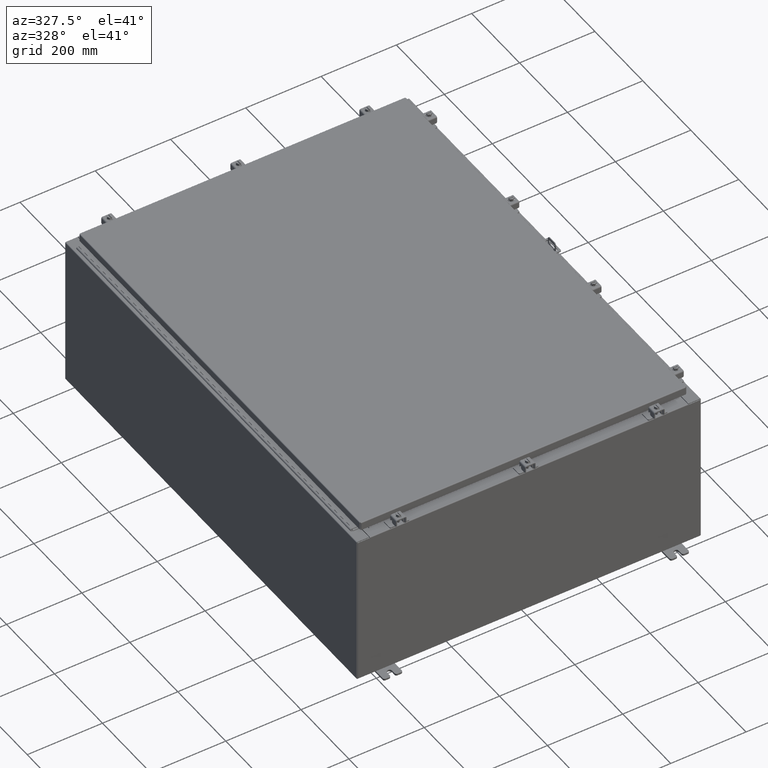
[diagram: clean part render]
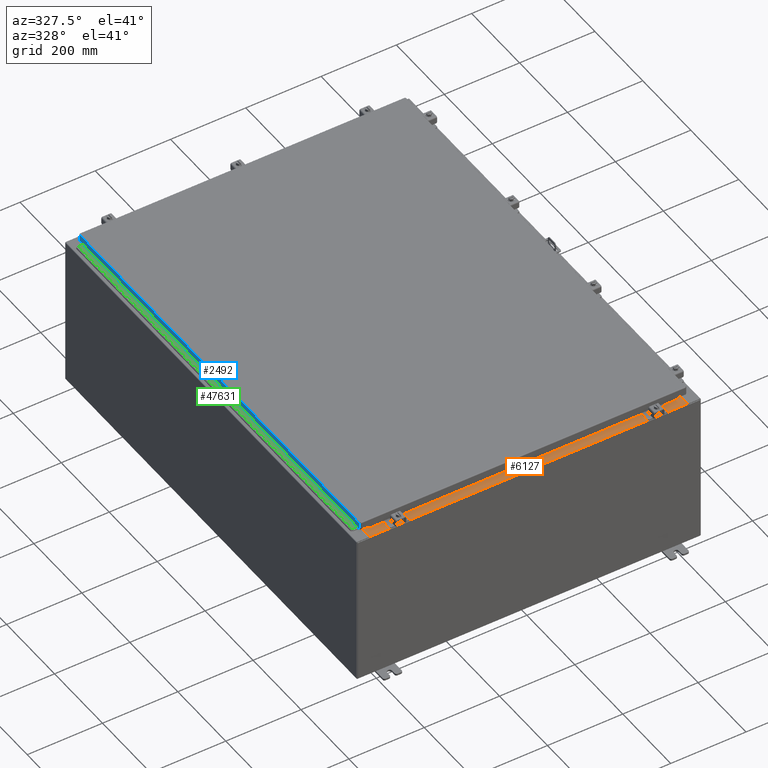
[diagram: same view with three faces highlighted in distinct colors, each labeled with its STEP entity id]
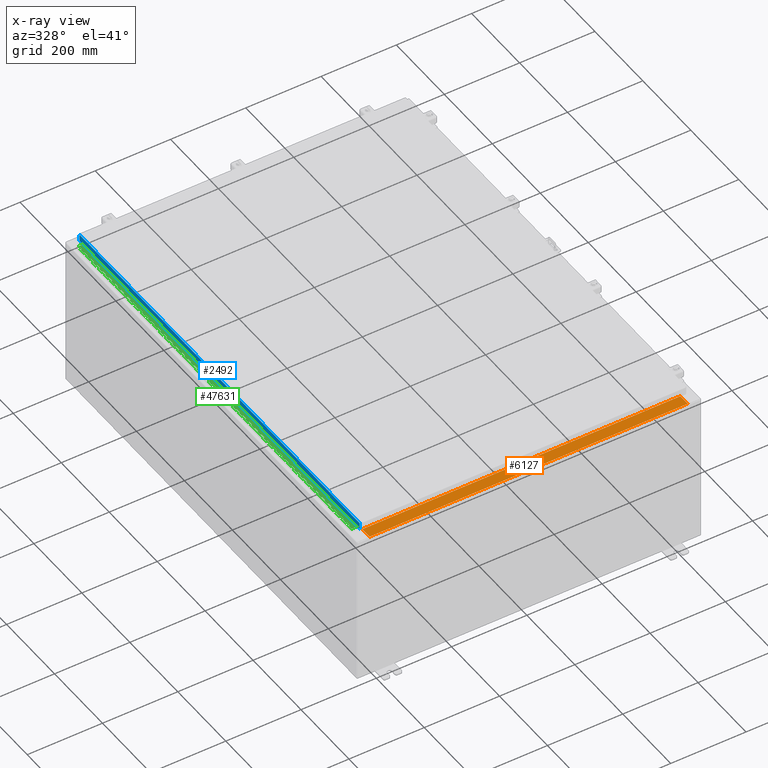
[diagram: x-ray of the same camera — body ghosted, the three highlighted faces saturated]
A machine part, auxiliary view with three faces highlighted in distinct colors.
The next image is the same camera in x-ray (body ghosted, the three faces saturated) — at least one of them is partly hidden behind the body in this view.
Their STEP definitions:

[orange] entity #6127 — the highlighted planar face has unit normal (-0, -0, 1).
#1330 = CARTESIAN_POINT ( 'NONE',  ( 16.63720000000000400, -0.08770000000000102700, 8.000000000000000000 ) ) ;
#1586 = LINE ( 'NONE', #23269, #12753 ) ;
#3890 = ORIENTED_EDGE ( 'NONE', *, *, #4045, .F. ) ;
#4045 = EDGE_CURVE ( 'NONE', #17555, #16481, #12254, .T. ) ;
#6127 = ADVANCED_FACE ( 'NONE', ( #22463 ), #14261, .T. ) ;
#8574 = DIRECTION ( 'NONE',  ( -1.000000000000000000, 0.0000000000000000000, 0.0000000000000000000 ) ) ;
#10464 = CARTESIAN_POINT ( 'NONE',  ( -16.63720000000000000, -0.08770000000000136000, 8.000000000000001800 ) ) ;
#11274 = VERTEX_POINT ( 'NONE', #1330 ) ;
#12254 = LINE ( 'NONE', #20318, #44073 ) ;
#12753 = VECTOR ( 'NONE', #19261, 39.37007874015748100 ) ;
#13098 = CARTESIAN_POINT ( 'NONE',  ( -16.63720000000000000, -1.287299999999999400, 8.000000000000007100 ) ) ;
#13178 = DIRECTION ( 'NONE',  ( 0.0000000000000000000, -1.000000000000000000, 3.566381192773190000E-015 ) ) ;
#13187 = DIRECTION ( 'NONE',  ( 6.568047492761433500E-017, 3.566381192773190000E-015, 1.000000000000000000 ) ) ;
#13304 = CARTESIAN_POINT ( 'NONE',  ( 5.250912337413644300E-016, 2.852545452309695200E-014, 8.000000000000001800 ) ) ;
#13640 = ORIENTED_EDGE ( 'NONE', *, *, #45833, .F. ) ;
#14261 = PLANE ( 'NONE',  #14325 ) ;
#14325 = AXIS2_PLACEMENT_3D ( 'NONE', #13304, #13187, #13178 ) ;
#15454 = CARTESIAN_POINT ( 'NONE',  ( 5.308514113925181600E-016, -0.08770000000000136000, 8.000000000000001800 ) ) ;
#16481 = VERTEX_POINT ( 'NONE', #10464 ) ;
#16984 = CARTESIAN_POINT ( 'NONE',  ( 16.63720000000000400, -1.287300000000000300, 8.000000000000003600 ) ) ;
#17555 = VERTEX_POINT ( 'NONE', #13098 ) ;
#18334 = DIRECTION ( 'NONE',  ( -0.0000000000000000000, 1.000000000000000000, -3.566381192773190000E-015 ) ) ;
#19261 = DIRECTION ( 'NONE',  ( -0.0000000000000000000, -1.000000000000000000, 3.566381192773190000E-015 ) ) ;
#20318 = CARTESIAN_POINT ( 'NONE',  ( -16.63720000000000000, -0.07469999999999973900, 8.000000000000001800 ) ) ;
#20400 = LINE ( 'NONE', #15454, #31426 ) ;
#22463 = FACE_OUTER_BOUND ( 'NONE', #45605, .T. ) ;
#23269 = CARTESIAN_POINT ( 'NONE',  ( 16.63720000000000000, -1.300299999999999800, 8.000000000000003600 ) ) ;
#24162 = VERTEX_POINT ( 'NONE', #47952 ) ;
#26850 = ORIENTED_EDGE ( 'NONE', *, *, #36564, .F. ) ;
#31426 = VECTOR ( 'NONE', #40323, 39.37007874015748100 ) ;
#31531 = LINE ( 'NONE', #16984, #52296 ) ;
#36564 = EDGE_CURVE ( 'NONE', #11274, #24162, #1586, .T. ) ;
#38334 = EDGE_CURVE ( 'NONE', #11274, #16481, #20400, .T. ) ;
#40323 = DIRECTION ( 'NONE',  ( -1.000000000000000000, -6.568047492761434800E-017, 6.568047492761457000E-017 ) ) ;
#44073 = VECTOR ( 'NONE', #18334, 39.37007874015748100 ) ;
#44916 = ORIENTED_EDGE ( 'NONE', *, *, #38334, .T. ) ;
#45605 = EDGE_LOOP ( 'NONE', ( #3890, #13640, #26850, #44916 ) ) ;
#45833 = EDGE_CURVE ( 'NONE', #24162, #17555, #31531, .T. ) ;
#47952 = CARTESIAN_POINT ( 'NONE',  ( 16.63720000000000000, -1.287300000000000300, 8.000000000000003600 ) ) ;
#52296 = VECTOR ( 'NONE', #8574, 39.37007874015748100 ) ;

[blue] entity #2492 — the highlighted planar face has unit normal (1, -0, -0).
#2492 = ADVANCED_FACE ( 'NONE', ( #5201 ), #34224, .F. ) ;
#3756 = CARTESIAN_POINT ( 'NONE',  ( -17.07799999999999900, -23.09400000000000100, -0.08770000000000004200 ) ) ;
#5201 = FACE_OUTER_BOUND ( 'NONE', #35171, .T. ) ;
#7946 = DIRECTION ( 'NONE',  ( -9.463403459476019000E-017, -1.000000000000000000, 1.419510518921414800E-016 ) ) ;
#14896 = AXIS2_PLACEMENT_3D ( 'NONE', #33606, #33494, #33144 ) ;
#16583 = CARTESIAN_POINT ( 'NONE',  ( -17.07799999999999600, 23.00515786437627600, -0.7949999999999941600 ) ) ;
#17732 = VECTOR ( 'NONE', #43270, 39.37007874015748100 ) ;
#18552 = VECTOR ( 'NONE', #23415, 39.37007874015748100 ) ;
#19052 = LINE ( 'NONE', #39141, #17732 ) ;
#19223 = CARTESIAN_POINT ( 'NONE',  ( -17.07799999999999600, 23.00515786437627200, 2.127217154807312100E-013 ) ) ;
#21650 = EDGE_CURVE ( 'NONE', #53645, #30745, #26628, .T. ) ;
#23415 = DIRECTION ( 'NONE',  ( -3.034122441942816100E-015, 6.982962677686267500E-015, -1.000000000000000000 ) ) ;
#23444 = EDGE_CURVE ( 'NONE', #29312, #53645, #19052, .T. ) ;
#26457 = ORIENTED_EDGE ( 'NONE', *, *, #37068, .T. ) ;
#26628 = LINE ( 'NONE', #36754, #47383 ) ;
#29312 = VERTEX_POINT ( 'NONE', #40700 ) ;
#30745 = VERTEX_POINT ( 'NONE', #16583 ) ;
#30930 = CARTESIAN_POINT ( 'NONE',  ( -17.07799999999999600, 23.00515786437627200, -0.08770000000000659200 ) ) ;
#32097 = CARTESIAN_POINT ( 'NONE',  ( -17.07800000000000300, -23.00515786437626900, -0.7949999999999996000 ) ) ;
#33144 = DIRECTION ( 'NONE',  ( -3.034122441942816500E-015, 0.0000000000000000000, -1.000000000000000000 ) ) ;
#33204 = ORIENTED_EDGE ( 'NONE', *, *, #50362, .F. ) ;
#33494 = DIRECTION ( 'NONE',  ( 1.000000000000000000, -9.463403459476060900E-017, -3.034122441942816500E-015 ) ) ;
#33606 = CARTESIAN_POINT ( 'NONE',  ( -17.07799999999999600, 1.616160042809321200E-015, 5.207755671951099000E-014 ) ) ;
#34224 = PLANE ( 'NONE',  #14896 ) ;
#35171 = EDGE_LOOP ( 'NONE', ( #33204, #26457, #45521, #50795 ) ) ;
#36754 = CARTESIAN_POINT ( 'NONE',  ( -17.07800000000000300, -23.09400000000000100, -0.7949999999999997100 ) ) ;
#37068 = EDGE_CURVE ( 'NONE', #40727, #30745, #51668, .T. ) ;
#39141 = CARTESIAN_POINT ( 'NONE',  ( -17.07799999999999900, -23.00515786437627200, -0.07469999999999976700 ) ) ;
#40700 = CARTESIAN_POINT ( 'NONE',  ( -17.07799999999999900, -23.00515786437626900, -0.08770000000000334500 ) ) ;
#40727 = VERTEX_POINT ( 'NONE', #30930 ) ;
#42894 = VECTOR ( 'NONE', #7946, 39.37007874015748100 ) ;
#43270 = DIRECTION ( 'NONE',  ( -3.034122441942816100E-015, 6.982962677686267500E-015, -1.000000000000000000 ) ) ;
#45521 = ORIENTED_EDGE ( 'NONE', *, *, #21650, .F. ) ;
#47383 = VECTOR ( 'NONE', #49300, 39.37007874015748100 ) ;
#49300 = DIRECTION ( 'NONE',  ( 9.463403459476099200E-017, 1.000000000000000000, 1.212498568245375300E-016 ) ) ;
#50362 = EDGE_CURVE ( 'NONE', #40727, #29312, #53938, .T. ) ;
#50795 = ORIENTED_EDGE ( 'NONE', *, *, #23444, .F. ) ;
#51668 = LINE ( 'NONE', #19223, #18552 ) ;
#53645 = VERTEX_POINT ( 'NONE', #32097 ) ;
#53938 = LINE ( 'NONE', #3756, #42894 ) ;

[green] entity #47631 — the highlighted planar face has unit normal (-0, -0, 1).
#1 = DIRECTION ( 'NONE',  ( -3.389037039080723100E-015, -1.000000000000000000, 0.0000000000000000000 ) ) ;
#98 = CARTESIAN_POINT ( 'NONE',  ( -0.6869999999999978300, 0.6754999999999996600, -45.00000000000000000 ) ) ;
#186 = DIRECTION ( 'NONE',  ( 0.0000000000000000000, 0.0000000000000000000, 1.000000000000000000 ) ) ;
#209 = EDGE_CURVE ( 'NONE', #40187, #31469, #29120, .T. ) ;
#235 = CARTESIAN_POINT ( 'NONE',  ( -0.6869999999999978300, 0.6754999999999996600, -13.50000000000000000 ) ) ;
#254 = EDGE_CURVE ( 'NONE', #46539, #12368, #37548, .T. ) ;
#321 = DIRECTION ( 'NONE',  ( -3.389037039080723100E-015, -1.000000000000000000, 0.0000000000000000000 ) ) ;
#334 = EDGE_CURVE ( 'NONE', #16729, #45501, #31049, .T. ) ;
#380 = ORIENTED_EDGE ( 'NONE', *, *, #23672, .T. ) ;
#381 = CARTESIAN_POINT ( 'NONE',  ( -0.6869999999999978300, 0.6754999999999996600, -23.99999999999999600 ) ) ;
#412 = CARTESIAN_POINT ( 'NONE',  ( -0.6869999999999973900, 0.8004999999999995500, -5.000000000000000000 ) ) ;
#426 = ORIENTED_EDGE ( 'NONE', *, *, #22001, .F. ) ;
#448 = VECTOR ( 'NONE', #35319, 39.37007874015748100 ) ;
#472 = VECTOR ( 'NONE', #34486, 39.37007874015748100 ) ;
#499 = EDGE_CURVE ( 'NONE', #16464, #48855, #24554, .T. ) ;
#567 = CARTESIAN_POINT ( 'NONE',  ( -0.6869999999999978300, 0.6754999999999996600, -10.50000000000000000 ) ) ;
#609 = VECTOR ( 'NONE', #40203, 39.37007874015748100 ) ;
#714 = CARTESIAN_POINT ( 'NONE',  ( -0.6869999999999973900, 0.8004999999999995500, -1.499999999999999800 ) ) ;
#731 = VERTEX_POINT ( 'NONE', #3584 ) ;
#742 = CARTESIAN_POINT ( 'NONE',  ( -0.6869999999999982800, 0.5504999999999997700, -12.49999999999999800 ) ) ;
#849 = DIRECTION ( 'NONE',  ( -3.389037039080723100E-015, -1.000000000000000000, 0.0000000000000000000 ) ) ;
#891 = CARTESIAN_POINT ( 'NONE',  ( -0.6869999999999982800, 0.5504999999999997700, -22.50000000000000000 ) ) ;
#936 = VERTEX_POINT ( 'NONE', #567 ) ;
#991 = ORIENTED_EDGE ( 'NONE', *, *, #25061, .F. ) ;
#1004 = LINE ( 'NONE', #18238, #53731 ) ;
#1026 = CARTESIAN_POINT ( 'NONE',  ( -0.6869999999999978300, 0.6754999999999996600, -36.00000000000000000 ) ) ;
#1041 = LINE ( 'NONE', #30421, #31709 ) ;
#1078 = VERTEX_POINT ( 'NONE', #9604 ) ;
#1097 = VECTOR ( 'NONE', #8793, 39.37007874015748100 ) ;
#1138 = EDGE_CURVE ( 'NONE', #1597, #9946, #9464, .T. ) ;
#1170 = CARTESIAN_POINT ( 'NONE',  ( -0.6869999999999978300, 0.6754999999999996600, -45.00000000000000000 ) ) ;
#1179 = DIRECTION ( 'NONE',  ( 0.0000000000000000000, 0.0000000000000000000, 1.000000000000000000 ) ) ;
#1246 = VERTEX_POINT ( 'NONE', #22929 ) ;
#1284 = ORIENTED_EDGE ( 'NONE', *, *, #50269, .F. ) ;
#1327 = VERTEX_POINT ( 'NONE', #27529 ) ;
#1347 = VERTEX_POINT ( 'NONE', #32878 ) ;
#1375 = VECTOR ( 'NONE', #24407, 39.37007874015748100 ) ;
#1401 = VERTEX_POINT ( 'NONE', #35236 ) ;
#1421 = CARTESIAN_POINT ( 'NONE',  ( -0.6869999999999973900, 0.8004999999999995500, -24.50000000000000000 ) ) ;
#1465 = ORIENTED_EDGE ( 'NONE', *, *, #16678, .F. ) ;
#1470 = CARTESIAN_POINT ( 'NONE',  ( -0.6869999999999982800, 0.5504999999999997700, -36.50000000000000000 ) ) ;
#1485 = ORIENTED_EDGE ( 'NONE', *, *, #49514, .F. ) ;
#1540 = VECTOR ( 'NONE', #4159, 39.37007874015748100 ) ;
#1578 = VERTEX_POINT ( 'NONE', #47485 ) ;
#1597 = VERTEX_POINT ( 'NONE', #48323 ) ;
#1632 = CARTESIAN_POINT ( 'NONE',  ( -0.6869999999999982800, 0.5504999999999997700, -31.00000000000000000 ) ) ;
#1652 = CARTESIAN_POINT ( 'NONE',  ( -0.6869999999999978300, 0.6754999999999996600, -38.50000000000000000 ) ) ;
#1675 = CARTESIAN_POINT ( 'NONE',  ( -0.6869999999999978300, 0.6754999999999996600, -28.00000000000000000 ) ) ;
#1788 = VERTEX_POINT ( 'NONE', #29493 ) ;
#1819 = VECTOR ( 'NONE', #4768, 39.37007874015748100 ) ;
#1827 = LINE ( 'NONE', #9458, #44815 ) ;
#1965 = VERTEX_POINT ( 'NONE', #46916 ) ;
#1999 = CARTESIAN_POINT ( 'NONE',  ( -0.6869999999999982800, 0.5504999999999997700, -20.50000000000000400 ) ) ;
#2059 = ORIENTED_EDGE ( 'NONE', *, *, #51764, .F. ) ;
#2176 = CARTESIAN_POINT ( 'NONE',  ( -0.6869999999999973900, 0.8004999999999995500, -8.000000000000000000 ) ) ;
#2182 = DIRECTION ( 'NONE',  ( 0.0000000000000000000, 0.0000000000000000000, 1.000000000000000000 ) ) ;
#2195 = LINE ( 'NONE', #25984, #25772 ) ;
#2240 = LINE ( 'NONE', #4358, #24490 ) ;
#2289 = CARTESIAN_POINT ( 'NONE',  ( -0.6869999999999978300, 0.6754999999999996600, -45.00000000000000000 ) ) ;
#2352 = VECTOR ( 'NONE', #34309, 39.37007874015748100 ) ;
#2382 = CARTESIAN_POINT ( 'NONE',  ( -0.6869999999999982800, 0.5504999999999997700, -16.00000000000000000 ) ) ;
#2397 = LINE ( 'NONE', #3441, #34336 ) ;
#2399 = DIRECTION ( 'NONE',  ( 3.389037039080723100E-015, 1.000000000000000000, -0.0000000000000000000 ) ) ;
#2409 = VERTEX_POINT ( 'NONE', #40286 ) ;
#2438 = CARTESIAN_POINT ( 'NONE',  ( -0.6869999999999982800, 0.5504999999999997700, -14.99999999999999800 ) ) ;
#2509 = DIRECTION ( 'NONE',  ( 0.0000000000000000000, 0.0000000000000000000, 1.000000000000000000 ) ) ;
#2527 = CARTESIAN_POINT ( 'NONE',  ( -0.6869999999999978300, 0.6754999999999996600, -6.499999999999999100 ) ) ;
#2575 = CARTESIAN_POINT ( 'NONE',  ( -0.6869999999999982800, 0.5504999999999997700, -21.50000000000000400 ) ) ;
#2631 = CARTESIAN_POINT ( 'NONE',  ( -0.6869999999999978300, 0.6754999999999996600, -37.50000000000000000 ) ) ;
#2686 = DIRECTION ( 'NONE',  ( 3.389037039080723100E-015, 1.000000000000000000, -0.0000000000000000000 ) ) ;
#2689 = VERTEX_POINT ( 'NONE', #19158 ) ;
#2732 = ORIENTED_EDGE ( 'NONE', *, *, #14093, .T. ) ;
#2765 = LINE ( 'NONE', #40132, #4073 ) ;
#2770 = CARTESIAN_POINT ( 'NONE',  ( -0.6869999999999978300, 0.6754999999999996600, -45.00000000000000000 ) ) ;
#2793 = LINE ( 'NONE', #3486, #23721 ) ;
#2846 = AXIS2_PLACEMENT_3D ( 'NONE', #41278, #53612, #20613 ) ;
#2888 = VECTOR ( 'NONE', #26623, 39.37007874015748100 ) ;
#2940 = VECTOR ( 'NONE', #11183, 39.37007874015748100 ) ;
#2949 = CARTESIAN_POINT ( 'NONE',  ( -0.6869999999999973900, 0.8004999999999995500, -42.00000000000000000 ) ) ;
#2951 = VECTOR ( 'NONE', #44002, 39.37007874015748100 ) ;
#2965 = VECTOR ( 'NONE', #29109, 39.37007874015748100 ) ;
#3005 = CARTESIAN_POINT ( 'NONE',  ( -0.6869999999999982800, 0.5504999999999997700, -17.00000000000000000 ) ) ;
#3018 = VERTEX_POINT ( 'NONE', #10974 ) ;
#3137 = LINE ( 'NONE', #40481, #22757 ) ;
#3151 = EDGE_CURVE ( 'NONE', #31469, #28916, #41592, .T. ) ;
#3153 = DIRECTION ( 'NONE',  ( 0.0000000000000000000, -0.0000000000000000000, -1.000000000000000000 ) ) ;
#3201 = VERTEX_POINT ( 'NONE', #40541 ) ;
#3206 = VECTOR ( 'NONE', #16355, 39.37007874015748100 ) ;
#3260 = CARTESIAN_POINT ( 'NONE',  ( -0.6869999999999982800, 0.5504999999999997700, -42.50000000000000000 ) ) ;
#3266 = ORIENTED_EDGE ( 'NONE', *, *, #49836, .F. ) ;
#3279 = CARTESIAN_POINT ( 'NONE',  ( -0.6869999999999973900, 0.8004999999999995500, -11.50000000000000000 ) ) ;
#3283 = LINE ( 'NONE', #49901, #22907 ) ;
#3296 = VECTOR ( 'NONE', #45266, 39.37007874015748100 ) ;
#3404 = VECTOR ( 'NONE', #35907, 39.37007874015748100 ) ;
#3408 = CARTESIAN_POINT ( 'NONE',  ( -0.6869999999999982800, 0.5504999999999997700, -34.50000000000000000 ) ) ;
#3441 = CARTESIAN_POINT ( 'NONE',  ( -0.6869999999999973900, 0.8004999999999995500, -10.00000000000000000 ) ) ;
#3463 = VECTOR ( 'NONE', #8639, 39.37007874015748100 ) ;
#3475 = CARTESIAN_POINT ( 'NONE',  ( -0.6869999999999973900, 0.8004999999999995500, -20.00000000000000000 ) ) ;
#3486 = CARTESIAN_POINT ( 'NONE',  ( -0.6869999999999973900, 0.8004999999999995500, -28.50000000000000000 ) ) ;
#3500 = EDGE_CURVE ( 'NONE', #23689, #22299, #24693, .T. ) ;
#3504 = EDGE_CURVE ( 'NONE', #14222, #24414, #35686, .T. ) ;
#3544 = DIRECTION ( 'NONE',  ( 3.389037039080723100E-015, 1.000000000000000000, -0.0000000000000000000 ) ) ;
#3564 = VERTEX_POINT ( 'NONE', #53034 ) ;
#3584 = CARTESIAN_POINT ( 'NONE',  ( -0.6869999999999978300, 0.6754999999999996600, -7.499999999999999100 ) ) ;
#3628 = CARTESIAN_POINT ( 'NONE',  ( -0.6869999999999982800, 0.5504999999999997700, -38.50000000000000000 ) ) ;
#3658 = DIRECTION ( 'NONE',  ( -3.389037039080723100E-015, -1.000000000000000000, 0.0000000000000000000 ) ) ;
#3675 = VERTEX_POINT ( 'NONE', #43529 ) ;
#3679 = ORIENTED_EDGE ( 'NONE', *, *, #28514, .F. ) ;
#3698 = DIRECTION ( 'NONE',  ( 0.0000000000000000000, -0.0000000000000000000, -1.000000000000000000 ) ) ;
#3736 = CARTESIAN_POINT ( 'NONE',  ( -0.6869999999999978300, 0.6754999999999996600, -19.50000000000000000 ) ) ;
#3750 = CARTESIAN_POINT ( 'NONE',  ( -0.6869999999999978300, 0.6754999999999996600, -45.00000000000000000 ) ) ;
#3776 = ORIENTED_EDGE ( 'NONE', *, *, #209, .F. ) ;
#3857 = LINE ( 'NONE', #33131, #13718 ) ;
#3921 = VECTOR ( 'NONE', #49864, 39.37007874015748100 ) ;
#3996 = DIRECTION ( 'NONE',  ( 0.0000000000000000000, -0.0000000000000000000, -1.000000000000000000 ) ) ;
#4011 = VERTEX_POINT ( 'NONE', #23068 ) ;
#4026 = LINE ( 'NONE', #36090, #13888 ) ;
#4073 = VECTOR ( 'NONE', #44090, 39.37007874015748100 ) ;
#4076 = EDGE_CURVE ( 'NONE', #51887, #48446, #31751, .T. ) ;
#4102 = DIRECTION ( 'NONE',  ( 0.0000000000000000000, 0.0000000000000000000, 1.000000000000000000 ) ) ;
#4121 = CARTESIAN_POINT ( 'NONE',  ( -0.6869999999999978300, 0.6754999999999996600, -45.00000000000000000 ) ) ;
#4159 = DIRECTION ( 'NONE',  ( -3.389037039080723100E-015, -1.000000000000000000, 0.0000000000000000000 ) ) ;
#4266 = VERTEX_POINT ( 'NONE', #21202 ) ;
#4273 = ORIENTED_EDGE ( 'NONE', *, *, #44627, .F. ) ;
#4285 = DIRECTION ( 'NONE',  ( 3.389037039080723100E-015, 1.000000000000000000, -0.0000000000000000000 ) ) ;
#4311 = ORIENTED_EDGE ( 'NONE', *, *, #31831, .F. ) ;
#4321 = LINE ( 'NONE', #45128, #14162 ) ;
#4330 = VERTEX_POINT ( 'NONE', #7561 ) ;
#4339 = CARTESIAN_POINT ( 'NONE',  ( -0.6869999999999982800, 0.5504999999999997700, -35.00000000000000000 ) ) ;
#4358 = CARTESIAN_POINT ( 'NONE',  ( -0.6869999999999978300, 0.6754999999999996600, -45.00000000000000000 ) ) ;
#4377 = CARTESIAN_POINT ( 'NONE',  ( -0.6869999999999982800, 0.5504999999999997700, -30.50000000000000400 ) ) ;
#4379 = CARTESIAN_POINT ( 'NONE',  ( -0.6869999999999982800, 0.5504999999999997700, -24.50000000000000000 ) ) ;
#4412 = VECTOR ( 'NONE', #7628, 39.37007874015748100 ) ;
#4413 = DIRECTION ( 'NONE',  ( 0.0000000000000000000, 0.0000000000000000000, 1.000000000000000000 ) ) ;
#4414 = ORIENTED_EDGE ( 'NONE', *, *, #47761, .F. ) ;
#4484 = VERTEX_POINT ( 'NONE', #46405 ) ;
#4486 = DIRECTION ( 'NONE',  ( 3.389037039080723100E-015, 1.000000000000000000, -0.0000000000000000000 ) ) ;
#4563 = LINE ( 'NONE', #35961, #47542 ) ;
#4574 = CARTESIAN_POINT ( 'NONE',  ( -0.6869999999999973900, 0.8004999999999995500, -29.50000000000000000 ) ) ;
#4633 = CARTESIAN_POINT ( 'NONE',  ( -0.6869999999999973900, 0.8004999999999995500, -18.50000000000000000 ) ) ;
#4669 = CARTESIAN_POINT ( 'NONE',  ( -0.6869999999999973900, 0.8004999999999995500, -6.000000000000000900 ) ) ;
#4670 = CARTESIAN_POINT ( 'NONE',  ( -0.6869999999999978300, 0.6754999999999996600, -9.000000000000000000 ) ) ;
#4767 = EDGE_CURVE ( 'NONE', #40932, #1965, #12834, .T. ) ;
#4768 = DIRECTION ( 'NONE',  ( 3.389037039080723100E-015, 1.000000000000000000, -0.0000000000000000000 ) ) ;
#4798 = VECTOR ( 'NONE', #40785, 39.37007874015748100 ) ;
#4808 = CARTESIAN_POINT ( 'NONE',  ( -0.6869999999999978300, 0.6754999999999996600, -2.999999999999999600 ) ) ;
#4818 = CARTESIAN_POINT ( 'NONE',  ( -0.6869999999999982800, 0.5504999999999997700, -40.50000000000000000 ) ) ;
#4852 = LINE ( 'NONE', #21047, #14702 ) ;
#4855 = CARTESIAN_POINT ( 'NONE',  ( -0.6869999999999982800, 0.5504999999999997700, -23.50000000000000000 ) ) ;
#4882 = ORIENTED_EDGE ( 'NONE', *, *, #22476, .T. ) ;
#4946 = DIRECTION ( 'NONE',  ( 0.0000000000000000000, -0.0000000000000000000, -1.000000000000000000 ) ) ;
#4970 = CARTESIAN_POINT ( 'NONE',  ( -0.6869999999999982800, 0.5504999999999997700, -35.50000000000000000 ) ) ;
#4985 = ORIENTED_EDGE ( 'NONE', *, *, #29570, .F. ) ;
#5006 = CARTESIAN_POINT ( 'NONE',  ( -0.6869999999999982800, 0.5504999999999997700, -15.50000000000000000 ) ) ;
#5017 = EDGE_CURVE ( 'NONE', #45658, #18875, #53717, .T. ) ;
#5068 = LINE ( 'NONE', #25619, #48039 ) ;
#5073 = VERTEX_POINT ( 'NONE', #42083 ) ;
#5099 = VERTEX_POINT ( 'NONE', #40967 ) ;
#5157 = VECTOR ( 'NONE', #19866, 39.37007874015748100 ) ;
#5165 = CARTESIAN_POINT ( 'NONE',  ( -0.6869999999999982800, 0.5504999999999997700, -4.500000000000000000 ) ) ;
#5210 = EDGE_CURVE ( 'NONE', #15122, #39501, #43275, .T. ) ;
#5241 = ORIENTED_EDGE ( 'NONE', *, *, #40629, .F. ) ;
#5255 = ORIENTED_EDGE ( 'NONE', *, *, #4767, .F. ) ;
#5258 = EDGE_CURVE ( 'NONE', #37483, #14220, #51734, .T. ) ;
#5318 = LINE ( 'NONE', #37426, #26252 ) ;
#5346 = VECTOR ( 'NONE', #53364, 39.37007874015748100 ) ;
#5348 = ORIENTED_EDGE ( 'NONE', *, *, #34454, .F. ) ;
#5357 = CARTESIAN_POINT ( 'NONE',  ( -0.6869999999999982800, 0.5504999999999997700, -32.50000000000000000 ) ) ;
#5377 = DIRECTION ( 'NONE',  ( -3.389037039080723100E-015, -1.000000000000000000, 0.0000000000000000000 ) ) ;
#5429 = DIRECTION ( 'NONE',  ( -3.389037039080723100E-015, -1.000000000000000000, 0.0000000000000000000 ) ) ;
#5454 = VECTOR ( 'NONE', #21583, 39.37007874015748100 ) ;
#5478 = ORIENTED_EDGE ( 'NONE', *, *, #46729, .F. ) ;
#5521 = EDGE_CURVE ( 'NONE', #43193, #30492, #30301, .T. ) ;
#5536 = VECTOR ( 'NONE', #5429, 39.37007874015748100 ) ;
#5537 = DIRECTION ( 'NONE',  ( 3.369016658928398200E-015, 1.000000000000000000, 0.0000000000000000000 ) ) ;
#5651 = ORIENTED_EDGE ( 'NONE', *, *, #48713, .F. ) ;
#5681 = VERTEX_POINT ( 'NONE', #23791 ) ;
#5707 = VECTOR ( 'NONE', #30642, 39.37007874015748100 ) ;
#5715 = ORIENTED_EDGE ( 'NONE', *, *, #48152, .F. ) ;
#5725 = EDGE_CURVE ( 'NONE', #7629, #9883, #10075, .T. ) ;
#5728 = DIRECTION ( 'NONE',  ( 0.0000000000000000000, 0.0000000000000000000, 1.000000000000000000 ) ) ;
#5776 = VECTOR ( 'NONE', #29284, 39.37007874015748100 ) ;
#5873 = VERTEX_POINT ( 'NONE', #19105 ) ;
#5882 = LINE ( 'NONE', #41643, #37802 ) ;
#5955 = ORIENTED_EDGE ( 'NONE', *, *, #5210, .F. ) ;
#6039 = LINE ( 'NONE', #47715, #36637 ) ;
#6054 = CARTESIAN_POINT ( 'NONE',  ( -0.6869999999999978300, 0.6754999999999996600, -42.00000000000000000 ) ) ;
#6065 = LINE ( 'NONE', #43998, #15896 ) ;
#6121 = ORIENTED_EDGE ( 'NONE', *, *, #10732, .F. ) ;
#6145 = VERTEX_POINT ( 'NONE', #12860 ) ;
#6158 = LINE ( 'NONE', #24907, #47838 ) ;
#6166 = ORIENTED_EDGE ( 'NONE', *, *, #8717, .F. ) ;
#6203 = VECTOR ( 'NONE', #4486, 39.37007874015748100 ) ;
#6285 = CARTESIAN_POINT ( 'NONE',  ( -0.6869999999999982800, 0.5504999999999997700, -40.50000000000000000 ) ) ;
#6286 = VECTOR ( 'NONE', #42848, 39.37007874015748100 ) ;
#6288 = VECTOR ( 'NONE', #38929, 39.37007874015748100 ) ;
#6316 = ORIENTED_EDGE ( 'NONE', *, *, #6928, .F. ) ;
#6351 = EDGE_CURVE ( 'NONE', #15122, #52387, #24383, .T. ) ;
#6355 = ORIENTED_EDGE ( 'NONE', *, *, #17890, .F. ) ;
#6358 = CARTESIAN_POINT ( 'NONE',  ( -0.6869999999999978300, 0.6754999999999996600, -4.500000000000000000 ) ) ;
#6475 = VECTOR ( 'NONE', #53490, 39.37007874015748100 ) ;
#6482 = VERTEX_POINT ( 'NONE', #6054 ) ;
#6487 = LINE ( 'NONE', #30047, #41006 ) ;
#6494 = VECTOR ( 'NONE', #37966, 39.37007874015748100 ) ;
#6540 = CARTESIAN_POINT ( 'NONE',  ( -0.6869999999999978300, 0.6754999999999996600, -45.00000000000000000 ) ) ;
#6579 = EDGE_CURVE ( 'NONE', #38783, #12450, #2793, .T. ) ;
#6607 = VERTEX_POINT ( 'NONE', #3408 ) ;
#6622 = CARTESIAN_POINT ( 'NONE',  ( -0.6869999999999978300, 0.6754999999999996600, -39.00000000000000000 ) ) ;
#6623 = CARTESIAN_POINT ( 'NONE',  ( -0.6869999999999982800, 0.5504999999999997700, -34.00000000000000000 ) ) ;
#6636 = VERTEX_POINT ( 'NONE', #2438 ) ;
#6646 = DIRECTION ( 'NONE',  ( 0.0000000000000000000, 0.0000000000000000000, 1.000000000000000000 ) ) ;
#6714 = DIRECTION ( 'NONE',  ( 3.389037039080723100E-015, 1.000000000000000000, -0.0000000000000000000 ) ) ;
#6761 = VECTOR ( 'NONE', #1179, 39.37007874015748100 ) ;
#6773 = CARTESIAN_POINT ( 'NONE',  ( -0.6869999999999973900, 0.8004999999999995500, -26.00000000000000000 ) ) ;
#6786 = ORIENTED_EDGE ( 'NONE', *, *, #12833, .F. ) ;
#6922 = VECTOR ( 'NONE', #26409, 39.37007874015748100 ) ;
#6928 = EDGE_CURVE ( 'NONE', #13557, #26671, #17791, .T. ) ;
#6978 = DIRECTION ( 'NONE',  ( 3.389037039080723100E-015, 1.000000000000000000, -0.0000000000000000000 ) ) ;
#6985 = LINE ( 'NONE', #2176, #49965 ) ;
#6996 = EDGE_CURVE ( 'NONE', #38383, #1578, #28849, .T. ) ;
#7075 = CARTESIAN_POINT ( 'NONE',  ( -0.6869999999999978300, 0.6754999999999996600, -45.00000000000000000 ) ) ;
#7178 = VERTEX_POINT ( 'NONE', #10067 ) ;
#7261 = ORIENTED_EDGE ( 'NONE', *, *, #22941, .F. ) ;
#7313 = EDGE_CURVE ( 'NONE', #39981, #6482, #14522, .T. ) ;
#7332 = LINE ( 'NONE', #30506, #50304 ) ;
#7370 = CARTESIAN_POINT ( 'NONE',  ( -0.6869999999999982800, 0.5504999999999997700, -44.00000000000000700 ) ) ;
#7385 = LINE ( 'NONE', #17061, #17213 ) ;
#7420 = CARTESIAN_POINT ( 'NONE',  ( -0.6869999999999973900, 0.8004999999999995500, -26.50000000000000400 ) ) ;
#7445 = VERTEX_POINT ( 'NONE', #53744 ) ;
#7469 = EDGE_CURVE ( 'NONE', #936, #6145, #5318, .T. ) ;
#7508 = DIRECTION ( 'NONE',  ( 0.0000000000000000000, 0.0000000000000000000, 1.000000000000000000 ) ) ;
#7561 = CARTESIAN_POINT ( 'NONE',  ( -0.6869999999999982800, 0.5504999999999997700, -33.00000000000000000 ) ) ;
#7582 = CARTESIAN_POINT ( 'NONE',  ( -0.6869999999999982800, 0.5504999999999997700, -28.50000000000000000 ) ) ;
#7586 = DIRECTION ( 'NONE',  ( 3.389037039080723100E-015, 1.000000000000000000, -0.0000000000000000000 ) ) ;
#7601 = ORIENTED_EDGE ( 'NONE', *, *, #45250, .F. ) ;
#7617 = EDGE_CURVE ( 'NONE', #36869, #30176, #50948, .T. ) ;
#7622 = LINE ( 'NONE', #9485, #16169 ) ;
#7628 = DIRECTION ( 'NONE',  ( 0.0000000000000000000, 0.0000000000000000000, 1.000000000000000000 ) ) ;
#7629 = VERTEX_POINT ( 'NONE', #26986 ) ;
#7671 = ORIENTED_EDGE ( 'NONE', *, *, #23769, .F. ) ;
#7730 = VECTOR ( 'NONE', #6978, 39.37007874015748100 ) ;
#7849 = EDGE_CURVE ( 'NONE', #27268, #34788, #8605, .T. ) ;
#7867 = VERTEX_POINT ( 'NONE', #46880 ) ;
#7988 = VERTEX_POINT ( 'NONE', #35814 ) ;
#8039 = CARTESIAN_POINT ( 'NONE',  ( -0.6869999999999973900, 0.8004999999999995500, -35.50000000000000000 ) ) ;
#8108 = EDGE_CURVE ( 'NONE', #47203, #37824, #17750, .T. ) ;
#8222 = EDGE_CURVE ( 'NONE', #45658, #33793, #23625, .T. ) ;
#8235 = CARTESIAN_POINT ( 'NONE',  ( -0.6869999999999973900, 0.8004999999999995500, -2.999999999999999600 ) ) ;
#8309 = EDGE_CURVE ( 'NONE', #26671, #23413, #50218, .T. ) ;
#8320 = LINE ( 'NONE', #3475, #30515 ) ;
#8324 = LINE ( 'NONE', #26492, #5707 ) ;
#8336 = VECTOR ( 'NONE', #40598, 39.37007874015748100 ) ;
#8385 = VECTOR ( 'NONE', #47054, 39.37007874015748100 ) ;
#8404 = ORIENTED_EDGE ( 'NONE', *, *, #14315, .T. ) ;
#8500 = CARTESIAN_POINT ( 'NONE',  ( -0.6869999999999982800, 0.5504999999999997700, -14.49999999999999800 ) ) ;
#8512 = CARTESIAN_POINT ( 'NONE',  ( -0.6869999999999982800, 0.5504999999999997700, -20.50000000000000400 ) ) ;
#8559 = DIRECTION ( 'NONE',  ( 3.389037039080723100E-015, 1.000000000000000000, -0.0000000000000000000 ) ) ;
#8587 = EDGE_CURVE ( 'NONE', #25993, #3201, #39802, .T. ) ;
#8605 = LINE ( 'NONE', #47656, #44416 ) ;
#8619 = CARTESIAN_POINT ( 'NONE',  ( -0.6869999999999978300, 0.6754999999999996600, -45.00000000000000000 ) ) ;
#8639 = DIRECTION ( 'NONE',  ( 0.0000000000000000000, 0.0000000000000000000, 1.000000000000000000 ) ) ;
#8658 = LINE ( 'NONE', #9903, #51604 ) ;
#8717 = EDGE_CURVE ( 'NONE', #48446, #20388, #22277, .T. ) ;
#8773 = CARTESIAN_POINT ( 'NONE',  ( -0.6869999999999978300, 0.6754999999999996600, -18.50000000000000000 ) ) ;
#8793 = DIRECTION ( 'NONE',  ( 3.389037039080723100E-015, 1.000000000000000000, -0.0000000000000000000 ) ) ;
#8796 = VERTEX_POINT ( 'NONE', #26039 ) ;
#8805 = CARTESIAN_POINT ( 'NONE',  ( -0.6869999999999973900, 0.8004999999999995500, -17.99999999999999600 ) ) ;
#8956 = VERTEX_POINT ( 'NONE', #40018 ) ;
#9040 = CARTESIAN_POINT ( 'NONE',  ( -0.6869999999999973900, 0.8004999999999995500, -23.00000000000000000 ) ) ;
#9069 = CARTESIAN_POINT ( 'NONE',  ( -0.6869999999999982800, 0.5504999999999997700, -38.00000000000000000 ) ) ;
#9114 = ORIENTED_EDGE ( 'NONE', *, *, #22229, .F. ) ;
#9172 = LINE ( 'NONE', #742, #17667 ) ;
#9201 = CARTESIAN_POINT ( 'NONE',  ( -0.6869999999999982800, 0.5504999999999997700, -31.50000000000000400 ) ) ;
#9282 = LINE ( 'NONE', #6285, #52197 ) ;
#9359 = VECTOR ( 'NONE', #11106, 39.37007874015748100 ) ;
#9391 = DIRECTION ( 'NONE',  ( 0.0000000000000000000, 0.0000000000000000000, 1.000000000000000000 ) ) ;
#9432 = CARTESIAN_POINT ( 'NONE',  ( -0.6869999999999982800, 0.5504999999999997700, -37.00000000000000000 ) ) ;
#9458 = CARTESIAN_POINT ( 'NONE',  ( -0.6869999999999982800, 0.5504999999999997700, -44.49999999999999300 ) ) ;
#9464 = LINE ( 'NONE', #13665, #51086 ) ;
#9485 = CARTESIAN_POINT ( 'NONE',  ( -0.6869999999999982800, 0.5504999999999997700, -3.500000000000000000 ) ) ;
#9541 = ORIENTED_EDGE ( 'NONE', *, *, #25258, .F. ) ;
#9604 = CARTESIAN_POINT ( 'NONE',  ( -0.6869999999999978300, 0.6754999999999996600, -11.50000000000000000 ) ) ;
#9607 = VECTOR ( 'NONE', #5377, 39.37007874015748100 ) ;
#9658 = LINE ( 'NONE', #19915, #8336 ) ;
#9670 = CARTESIAN_POINT ( 'NONE',  ( -0.6869999999999978300, 0.6754999999999996600, -34.00000000000000000 ) ) ;
#9735 = VERTEX_POINT ( 'NONE', #48223 ) ;
#9815 = EDGE_CURVE ( 'NONE', #35799, #14222, #16777, .T. ) ;
#9883 = VERTEX_POINT ( 'NONE', #37907 ) ;
#9903 = CARTESIAN_POINT ( 'NONE',  ( -0.6869999999999973900, 0.8004999999999995500, -14.49999999999999800 ) ) ;
#9946 = VERTEX_POINT ( 'NONE', #33352 ) ;
#9997 = VERTEX_POINT ( 'NONE', #30831 ) ;
#10032 = CARTESIAN_POINT ( 'NONE',  ( -0.6869999999999973900, 0.8004999999999995500, -8.500000000000000000 ) ) ;
#10067 = CARTESIAN_POINT ( 'NONE',  ( -0.6869999999999978300, 0.6754999999999996600, -3.500000000000000000 ) ) ;
#10075 = LINE ( 'NONE', #23277, #30935 ) ;
#10259 = VERTEX_POINT ( 'NONE', #15132 ) ;
#10370 = EDGE_CURVE ( 'NONE', #20510, #37140, #34346, .T. ) ;
#10418 = VERTEX_POINT ( 'NONE', #4339 ) ;
#10425 = VERTEX_POINT ( 'NONE', #5006 ) ;
#10517 = CARTESIAN_POINT ( 'NONE',  ( -0.6869999999999982800, 0.5504999999999997700, -42.50000000000000000 ) ) ;
#10538 = ORIENTED_EDGE ( 'NONE', *, *, #499, .T. ) ;
#10540 = EDGE_CURVE ( 'NONE', #45501, #35118, #37594, .T. ) ;
#10606 = DIRECTION ( 'NONE',  ( 3.389037039080723100E-015, 1.000000000000000000, -0.0000000000000000000 ) ) ;
#10608 = ORIENTED_EDGE ( 'NONE', *, *, #37412, .F. ) ;
#10660 = CARTESIAN_POINT ( 'NONE',  ( -0.6869999999999982800, 0.5504999999999997700, -4.500000000000000000 ) ) ;
#10671 = ORIENTED_EDGE ( 'NONE', *, *, #21230, .F. ) ;
#10696 = DIRECTION ( 'NONE',  ( 0.0000000000000000000, -0.0000000000000000000, -1.000000000000000000 ) ) ;
#10732 = EDGE_CURVE ( 'NONE', #23331, #20510, #40809, .T. ) ;
#10797 = EDGE_CURVE ( 'NONE', #6636, #42723, #46661, .T. ) ;
#10808 = ORIENTED_EDGE ( 'NONE', *, *, #26555, .F. ) ;
#10857 = CARTESIAN_POINT ( 'NONE',  ( -0.6869999999999978300, 0.6754999999999996600, -45.00000000000000000 ) ) ;
#10865 = EDGE_CURVE ( 'NONE', #12629, #15465, #1041, .T. ) ;
#10893 = DIRECTION ( 'NONE',  ( -3.389037039080723100E-015, -1.000000000000000000, 0.0000000000000000000 ) ) ;
#10960 = CARTESIAN_POINT ( 'NONE',  ( -0.6869999999999978300, 0.6754999999999996600, -42.50000000000000000 ) ) ;
#10974 = CARTESIAN_POINT ( 'NONE',  ( -0.6869999999999982800, 0.5504999999999997700, -8.500000000000000000 ) ) ;
#11029 = VERTEX_POINT ( 'NONE', #18517 ) ;
#11104 = ORIENTED_EDGE ( 'NONE', *, *, #32301, .F. ) ;
#11106 = DIRECTION ( 'NONE',  ( 0.0000000000000000000, -0.0000000000000000000, -1.000000000000000000 ) ) ;
#11119 = CARTESIAN_POINT ( 'NONE',  ( -0.6869999999999973900, 0.8004999999999995500, -5.500000000000000000 ) ) ;
#11139 = CARTESIAN_POINT ( 'NONE',  ( -0.6869999999999978300, 0.6754999999999996600, -45.00000000000000000 ) ) ;
#11158 = ORIENTED_EDGE ( 'NONE', *, *, #5725, .F. ) ;
#11182 = ORIENTED_EDGE ( 'NONE', *, *, #44233, .F. ) ;
#11183 = DIRECTION ( 'NONE',  ( 0.0000000000000000000, 0.0000000000000000000, 1.000000000000000000 ) ) ;
#11185 = CARTESIAN_POINT ( 'NONE',  ( -0.6869999999999982800, 0.5504999999999997700, -18.50000000000000000 ) ) ;
#11209 = VERTEX_POINT ( 'NONE', #6622 ) ;
#11215 = CARTESIAN_POINT ( 'NONE',  ( -0.6869999999999982800, 0.5504999999999997700, -28.00000000000000000 ) ) ;
#11232 = EDGE_CURVE ( 'NONE', #46737, #36869, #50509, .T. ) ;
#11333 = DIRECTION ( 'NONE',  ( 0.0000000000000000000, 0.0000000000000000000, 1.000000000000000000 ) ) ;
#11458 = ORIENTED_EDGE ( 'NONE', *, *, #30570, .T. ) ;
#11483 = VECTOR ( 'NONE', #38856, 39.37007874015748100 ) ;
#11602 = CARTESIAN_POINT ( 'NONE',  ( -0.6869999999999978300, 0.6754999999999996600, -12.49999999999999800 ) ) ;
#11605 = VERTEX_POINT ( 'NONE', #45309 ) ;
#11683 = VECTOR ( 'NONE', #24430, 39.37007874015748100 ) ;
#11727 = CARTESIAN_POINT ( 'NONE',  ( -0.6869999999999978300, 0.6754999999999996600, -19.00000000000000000 ) ) ;
#11730 = CARTESIAN_POINT ( 'NONE',  ( -0.6869999999999973900, 0.8004999999999995500, -0.5000000000000000000 ) ) ;
#11769 = CARTESIAN_POINT ( 'NONE',  ( -0.6869999999999982800, 0.5504999999999997700, -17.50000000000000000 ) ) ;
#11844 = DIRECTION ( 'NONE',  ( 0.0000000000000000000, -0.0000000000000000000, -1.000000000000000000 ) ) ;
#11848 = CARTESIAN_POINT ( 'NONE',  ( -0.6869999999999982800, 0.5504999999999997700, -43.50000000000000000 ) ) ;
#11920 = ORIENTED_EDGE ( 'NONE', *, *, #36101, .F. ) ;
#11964 = ORIENTED_EDGE ( 'NONE', *, *, #49149, .T. ) ;
#12000 = VERTEX_POINT ( 'NONE', #33716 ) ;
#12024 = CARTESIAN_POINT ( 'NONE',  ( -0.6869999999999973900, 0.8004999999999995500, -25.50000000000000400 ) ) ;
#12037 = VERTEX_POINT ( 'NONE', #32686 ) ;
#12120 = VERTEX_POINT ( 'NONE', #31655 ) ;
#12172 = VECTOR ( 'NONE', #47122, 39.37007874015748100 ) ;
#12173 = VERTEX_POINT ( 'NONE', #29278 ) ;
#12266 = ORIENTED_EDGE ( 'NONE', *, *, #39868, .F. ) ;
#12269 = EDGE_CURVE ( 'NONE', #21776, #39981, #2195, .T. ) ;
#12270 = VECTOR ( 'NONE', #15023, 39.37007874015748100 ) ;
#12280 = CARTESIAN_POINT ( 'NONE',  ( -0.6869999999999978300, 0.6754999999999996600, -37.00000000000000000 ) ) ;
#12349 = VERTEX_POINT ( 'NONE', #24102 ) ;
#12368 = VERTEX_POINT ( 'NONE', #23928 ) ;
#12393 = CARTESIAN_POINT ( 'NONE',  ( -0.6869999999999982800, 0.5504999999999997700, -23.99999999999999600 ) ) ;
#12407 = DIRECTION ( 'NONE',  ( 3.389037039080723100E-015, 1.000000000000000000, -0.0000000000000000000 ) ) ;
#12450 = VERTEX_POINT ( 'NONE', #21904 ) ;
#12597 = ORIENTED_EDGE ( 'NONE', *, *, #15144, .F. ) ;
#12629 = VERTEX_POINT ( 'NONE', #17138 ) ;
#12641 = CARTESIAN_POINT ( 'NONE',  ( -0.6869999999999982800, 0.5504999999999997700, -42.00000000000000000 ) ) ;
#12647 = EDGE_CURVE ( 'NONE', #48172, #12037, #7385, .T. ) ;
#12711 = VECTOR ( 'NONE', #36088, 39.37007874015748100 ) ;
#12756 = CARTESIAN_POINT ( 'NONE',  ( -0.6869999999999982800, 0.5504999999999997700, -16.50000000000000000 ) ) ;
#12815 = DIRECTION ( 'NONE',  ( 0.0000000000000000000, -0.0000000000000000000, -1.000000000000000000 ) ) ;
#12833 = EDGE_CURVE ( 'NONE', #8956, #22386, #42542, .T. ) ;
#12834 = LINE ( 'NONE', #47304, #42049 ) ;
#12860 = CARTESIAN_POINT ( 'NONE',  ( -0.6869999999999982800, 0.5504999999999997700, -10.50000000000000000 ) ) ;
#12987 = VECTOR ( 'NONE', #25624, 39.37007874015748100 ) ;
#13002 = LINE ( 'NONE', #46268, #1819 ) ;
#13070 = EDGE_CURVE ( 'NONE', #43062, #1788, #21133, .T. ) ;
#13085 = VERTEX_POINT ( 'NONE', #3628 ) ;
#13105 = ORIENTED_EDGE ( 'NONE', *, *, #41765, .F. ) ;
#13135 = EDGE_CURVE ( 'NONE', #15183, #37140, #40569, .T. ) ;
#13138 = FACE_OUTER_BOUND ( 'NONE', #52931, .T. ) ;
#13162 = LINE ( 'NONE', #38232, #22931 ) ;
#13215 = DIRECTION ( 'NONE',  ( 3.389037039080723100E-015, 1.000000000000000000, -0.0000000000000000000 ) ) ;
#13225 = CARTESIAN_POINT ( 'NONE',  ( -0.6869999999999973900, 0.8004999999999995500, -27.50000000000000000 ) ) ;
#13314 = VERTEX_POINT ( 'NONE', #47051 ) ;
#13358 = ORIENTED_EDGE ( 'NONE', *, *, #53861, .F. ) ;
#13395 = DIRECTION ( 'NONE',  ( -3.389037039080723100E-015, -1.000000000000000000, 0.0000000000000000000 ) ) ;
#13453 = ORIENTED_EDGE ( 'NONE', *, *, #4076, .F. ) ;
#13466 = DIRECTION ( 'NONE',  ( -3.389037039080723100E-015, -1.000000000000000000, 0.0000000000000000000 ) ) ;
#13489 = VECTOR ( 'NONE', #15114, 39.37007874015748100 ) ;
#13493 = CARTESIAN_POINT ( 'NONE',  ( -0.6869999999999973900, 0.8004999999999995500, -19.50000000000000000 ) ) ;
#13504 = ORIENTED_EDGE ( 'NONE', *, *, #44052, .F. ) ;
#13557 = VERTEX_POINT ( 'NONE', #26794 ) ;
#13628 = VECTOR ( 'NONE', #52202, 39.37007874015748100 ) ;
#13665 = CARTESIAN_POINT ( 'NONE',  ( -0.6869999999999978300, 0.6754999999999996600, -45.00000000000000000 ) ) ;
#13669 = DIRECTION ( 'NONE',  ( -3.389037039080723100E-015, -1.000000000000000000, 0.0000000000000000000 ) ) ;
#13718 = VECTOR ( 'NONE', #20858, 39.37007874015748100 ) ;
#13730 = VERTEX_POINT ( 'NONE', #14777 ) ;
#13828 = VECTOR ( 'NONE', #22633, 39.37007874015748100 ) ;
#13888 = VECTOR ( 'NONE', #40289, 39.37007874015748100 ) ;
#14033 = DIRECTION ( 'NONE',  ( 0.0000000000000000000, 0.0000000000000000000, 1.000000000000000000 ) ) ;
#14074 = VERTEX_POINT ( 'NONE', #47972 ) ;
#14093 = EDGE_CURVE ( 'NONE', #49157, #1965, #40474, .T. ) ;
#14111 = LINE ( 'NONE', #6540, #2951 ) ;
#14124 = VECTOR ( 'NONE', #41078, 39.37007874015748100 ) ;
#14148 = ORIENTED_EDGE ( 'NONE', *, *, #47827, .F. ) ;
#14162 = VECTOR ( 'NONE', #53650, 39.37007874015748100 ) ;
#14220 = VERTEX_POINT ( 'NONE', #44072 ) ;
#14222 = VERTEX_POINT ( 'NONE', #43942 ) ;
#14265 = ORIENTED_EDGE ( 'NONE', *, *, #6996, .F. ) ;
#14283 = VERTEX_POINT ( 'NONE', #42048 ) ;
#14314 = ORIENTED_EDGE ( 'NONE', *, *, #39088, .F. ) ;
#14315 = EDGE_CURVE ( 'NONE', #52306, #8796, #30073, .T. ) ;
#14341 = EDGE_CURVE ( 'NONE', #7867, #34357, #39794, .T. ) ;
#14349 = CARTESIAN_POINT ( 'NONE',  ( -0.6869999999999973900, 0.8004999999999995500, -31.50000000000000400 ) ) ;
#14360 = CARTESIAN_POINT ( 'NONE',  ( -0.6869999999999978300, 0.6754999999999996600, -45.00000000000000000 ) ) ;
#14414 = EDGE_CURVE ( 'NONE', #26565, #43215, #45628, .T. ) ;
#14522 = LINE ( 'NONE', #2949, #25614 ) ;
#14611 = ORIENTED_EDGE ( 'NONE', *, *, #10797, .F. ) ;
#14627 = CARTESIAN_POINT ( 'NONE',  ( -0.6869999999999973900, 0.8004999999999995500, -23.99999999999999600 ) ) ;
#14672 = DIRECTION ( 'NONE',  ( 0.0000000000000000000, -0.0000000000000000000, -1.000000000000000000 ) ) ;
#14702 = VECTOR ( 'NONE', #45878, 39.37007874015748100 ) ;
#14767 = CARTESIAN_POINT ( 'NONE',  ( -0.6869999999999978300, 0.6754999999999996600, -21.00000000000000000 ) ) ;
#14774 = ORIENTED_EDGE ( 'NONE', *, *, #41400, .F. ) ;
#14777 = CARTESIAN_POINT ( 'NONE',  ( -0.6869999999999978300, 0.6754999999999996600, -0.5000000000000000000 ) ) ;
#14979 = ORIENTED_EDGE ( 'NONE', *, *, #32140, .F. ) ;
#15012 = VERTEX_POINT ( 'NONE', #19168 ) ;
#15023 = DIRECTION ( 'NONE',  ( 0.0000000000000000000, 0.0000000000000000000, 1.000000000000000000 ) ) ;
#15045 = DIRECTION ( 'NONE',  ( 3.389037039080723100E-015, 1.000000000000000000, -0.0000000000000000000 ) ) ;
#15050 = ORIENTED_EDGE ( 'NONE', *, *, #24224, .F. ) ;
#15079 = CARTESIAN_POINT ( 'NONE',  ( -0.6869999999999978300, 0.6754999999999996600, -23.50000000000000000 ) ) ;
#15114 = DIRECTION ( 'NONE',  ( 0.0000000000000000000, 0.0000000000000000000, 1.000000000000000000 ) ) ;
#15122 = VERTEX_POINT ( 'NONE', #16584 ) ;
#15130 = VERTEX_POINT ( 'NONE', #17063 ) ;
#15132 = CARTESIAN_POINT ( 'NONE',  ( -0.6869999999999982800, 0.5504999999999997700, -12.99999999999999800 ) ) ;
#15144 = EDGE_CURVE ( 'NONE', #35118, #40581, #36437, .T. ) ;
#15183 = VERTEX_POINT ( 'NONE', #15079 ) ;
#15201 = CARTESIAN_POINT ( 'NONE',  ( -0.6869999999999978300, 0.6754999999999996600, -45.00000000000000000 ) ) ;
#15208 = VECTOR ( 'NONE', #15933, 39.37007874015748100 ) ;
#15245 = CARTESIAN_POINT ( 'NONE',  ( -0.6869999999999978300, 0.6754999999999996600, -23.00000000000000000 ) ) ;
#15253 = CARTESIAN_POINT ( 'NONE',  ( -0.6869999999999978300, 0.6754999999999996600, -26.50000000000000400 ) ) ;
#15301 = VERTEX_POINT ( 'NONE', #10960 ) ;
#15390 = CARTESIAN_POINT ( 'NONE',  ( -0.6869999999999978300, 0.6754999999999996600, -45.00000000000000000 ) ) ;
#15465 = VERTEX_POINT ( 'NONE', #4818 ) ;
#15596 = DIRECTION ( 'NONE',  ( -3.389037039080723100E-015, -1.000000000000000000, 0.0000000000000000000 ) ) ;
#15609 = VERTEX_POINT ( 'NONE', #1675 ) ;
#15626 = EDGE_CURVE ( 'NONE', #50913, #3564, #27979, .T. ) ;
#15629 = CARTESIAN_POINT ( 'NONE',  ( -0.6869999999999998300, 0.07549999999999991400, -45.00000000000000000 ) ) ;
#15684 = ORIENTED_EDGE ( 'NONE', *, *, #23049, .F. ) ;
#15690 = ORIENTED_EDGE ( 'NONE', *, *, #18143, .T. ) ;
#15691 = CARTESIAN_POINT ( 'NONE',  ( -0.6869999999999978300, 0.6754999999999996600, -44.49999999999999300 ) ) ;
#15700 = EDGE_CURVE ( 'NONE', #5073, #29339, #46159, .T. ) ;
#15713 = VECTOR ( 'NONE', #20998, 39.37007874015748100 ) ;
#15730 = CARTESIAN_POINT ( 'NONE',  ( -0.6869999999999982800, 0.5504999999999997700, -2.500000000000000000 ) ) ;
#15773 = EDGE_CURVE ( 'NONE', #36174, #3564, #43500, .T. ) ;
#15896 = VECTOR ( 'NONE', #23360, 39.37007874015748100 ) ;
#15933 = DIRECTION ( 'NONE',  ( 0.0000000000000000000, -0.0000000000000000000, -1.000000000000000000 ) ) ;
#15964 = DIRECTION ( 'NONE',  ( 0.0000000000000000000, -0.0000000000000000000, -1.000000000000000000 ) ) ;
#15966 = DIRECTION ( 'NONE',  ( 3.389037039080723100E-015, 1.000000000000000000, -0.0000000000000000000 ) ) ;
#15975 = CARTESIAN_POINT ( 'NONE',  ( -0.6869999999999973900, 0.8004999999999995500, -40.00000000000000000 ) ) ;
#16096 = EDGE_CURVE ( 'NONE', #13085, #3675, #32278, .T. ) ;
#16169 = VECTOR ( 'NONE', #38604, 39.37007874015748100 ) ;
#16252 = LINE ( 'NONE', #22211, #27336 ) ;
#16288 = CARTESIAN_POINT ( 'NONE',  ( -0.6869999999999978300, 0.6754999999999996600, -45.00000000000000000 ) ) ;
#16298 = EDGE_CURVE ( 'NONE', #44277, #1327, #34205, .T. ) ;
#16355 = DIRECTION ( 'NONE',  ( 3.389037039080723100E-015, 1.000000000000000000, -0.0000000000000000000 ) ) ;
#16356 = LINE ( 'NONE', #21521, #48201 ) ;
#16365 = CARTESIAN_POINT ( 'NONE',  ( -0.6869999999999973900, 0.8004999999999995500, -7.000000000000000000 ) ) ;
#16441 = CARTESIAN_POINT ( 'NONE',  ( -0.6869999999999982800, 0.5504999999999997700, -35.50000000000000000 ) ) ;
#16464 = VERTEX_POINT ( 'NONE', #15253 ) ;
#16484 = LINE ( 'NONE', #32430, #15208 ) ;
#16501 = CARTESIAN_POINT ( 'NONE',  ( -0.6869999999999982800, 0.5504999999999997700, -6.000000000000000900 ) ) ;
#16584 = CARTESIAN_POINT ( 'NONE',  ( -0.6869999999999978300, 0.6754999999999996600, -32.50000000000000000 ) ) ;
#16610 = CARTESIAN_POINT ( 'NONE',  ( -0.6869999999999982800, 0.5504999999999997700, -15.50000000000000000 ) ) ;
#16616 = DIRECTION ( 'NONE',  ( 3.389037039080723100E-015, 1.000000000000000000, -0.0000000000000000000 ) ) ;
#16678 = EDGE_CURVE ( 'NONE', #13314, #5073, #25790, .T. ) ;
#16729 = VERTEX_POINT ( 'NONE', #2527 ) ;
#16761 = VERTEX_POINT ( 'NONE', #23737 ) ;
#16777 = LINE ( 'NONE', #42831, #36263 ) ;
#16943 = EDGE_CURVE ( 'NONE', #49157, #23099, #33466, .T. ) ;
#16955 = ORIENTED_EDGE ( 'NONE', *, *, #43545, .F. ) ;
#16992 = VERTEX_POINT ( 'NONE', #21002 ) ;
#17011 = CARTESIAN_POINT ( 'NONE',  ( -0.6869999999999978300, 0.6754999999999996600, -45.00000000000000000 ) ) ;
#17033 = DIRECTION ( 'NONE',  ( 0.0000000000000000000, -0.0000000000000000000, -1.000000000000000000 ) ) ;
#17061 = CARTESIAN_POINT ( 'NONE',  ( -0.6869999999999973900, 0.8004999999999995500, -41.00000000000000700 ) ) ;
#17063 = CARTESIAN_POINT ( 'NONE',  ( -0.6869999999999978300, 0.6754999999999996600, -6.000000000000000900 ) ) ;
#17087 = CARTESIAN_POINT ( 'NONE',  ( -0.6869999999999973900, 0.8004999999999995500, -28.99999999999999600 ) ) ;
#17138 = CARTESIAN_POINT ( 'NONE',  ( -0.6869999999999978300, 0.6754999999999996600, -40.50000000000000000 ) ) ;
#17199 = CARTESIAN_POINT ( 'NONE',  ( -0.6869999999999982800, 0.5504999999999997700, -9.500000000000000000 ) ) ;
#17204 = ORIENTED_EDGE ( 'NONE', *, *, #41929, .T. ) ;
#17213 = VECTOR ( 'NONE', #16616, 39.37007874015748100 ) ;
#17294 = DIRECTION ( 'NONE',  ( 0.0000000000000000000, -0.0000000000000000000, -1.000000000000000000 ) ) ;
#17367 = VECTOR ( 'NONE', #3996, 39.37007874015748100 ) ;
#17376 = LINE ( 'NONE', #4669, #36852 ) ;
#17424 = VERTEX_POINT ( 'NONE', #32856 ) ;
#17625 = LINE ( 'NONE', #412, #6494 ) ;
#17653 = CARTESIAN_POINT ( 'NONE',  ( -0.6869999999999978300, 0.6754999999999996600, -33.50000000000000000 ) ) ;
#17655 = LINE ( 'NONE', #21115, #49494 ) ;
#17667 = VECTOR ( 'NONE', #4946, 39.37007874015748100 ) ;
#17716 = CARTESIAN_POINT ( 'NONE',  ( -0.6869999999999978300, 0.6754999999999996600, -45.00000000000000000 ) ) ;
#17739 = EDGE_CURVE ( 'NONE', #7178, #24414, #32742, .T. ) ;
#17747 = EDGE_CURVE ( 'NONE', #16761, #9883, #41209, .T. ) ;
#17750 = LINE ( 'NONE', #28992, #49591 ) ;
#17773 = VECTOR ( 'NONE', #26793, 39.37007874015748100 ) ;
#17791 = LINE ( 'NONE', #35690, #50934 ) ;
#17821 = CARTESIAN_POINT ( 'NONE',  ( -0.6869999999999973900, 0.8004999999999995500, -34.00000000000000000 ) ) ;
#17890 = EDGE_CURVE ( 'NONE', #3018, #30677, #2765, .T. ) ;
#18048 = LINE ( 'NONE', #28150, #19370 ) ;
#18089 = EDGE_CURVE ( 'NONE', #38033, #52028, #26915, .T. ) ;
#18095 = VECTOR ( 'NONE', #31311, 39.37007874015748100 ) ;
#18143 = EDGE_CURVE ( 'NONE', #27752, #45735, #25068, .T. ) ;
#18238 = CARTESIAN_POINT ( 'NONE',  ( -0.6869999999999973900, 0.8004999999999995500, -16.00000000000000000 ) ) ;
#18247 = ORIENTED_EDGE ( 'NONE', *, *, #20997, .T. ) ;
#18345 = ORIENTED_EDGE ( 'NONE', *, *, #37775, .F. ) ;
#18489 = ORIENTED_EDGE ( 'NONE', *, *, #42844, .F. ) ;
#18512 = ORIENTED_EDGE ( 'NONE', *, *, #5017, .T. ) ;
#18517 = CARTESIAN_POINT ( 'NONE',  ( -0.6869999999999978300, 0.6754999999999996600, -43.50000000000000000 ) ) ;
#18613 = ORIENTED_EDGE ( 'NONE', *, *, #26456, .F. ) ;
#18649 = ORIENTED_EDGE ( 'NONE', *, *, #27557, .F. ) ;
#18720 = VECTOR ( 'NONE', #7586, 39.37007874015748100 ) ;
#18779 = CARTESIAN_POINT ( 'NONE',  ( -0.6869999999999973900, 0.8004999999999995500, -21.50000000000000400 ) ) ;
#18875 = VERTEX_POINT ( 'NONE', #1026 ) ;
#18908 = CARTESIAN_POINT ( 'NONE',  ( -0.6869999999999978300, 0.6754999999999996600, -45.00000000000000000 ) ) ;
#18920 = VECTOR ( 'NONE', #28168, 39.37007874015748100 ) ;
#18977 = ORIENTED_EDGE ( 'NONE', *, *, #34253, .T. ) ;
#18999 = VECTOR ( 'NONE', #40811, 39.37007874015748100 ) ;
#19015 = EDGE_CURVE ( 'NONE', #30492, #1788, #28833, .T. ) ;
#19055 = CARTESIAN_POINT ( 'NONE',  ( -0.6869999999999973900, 0.8004999999999995500, -1.000000000000000000 ) ) ;
#19105 = CARTESIAN_POINT ( 'NONE',  ( -0.6869999999999978300, 0.6754999999999996600, -38.00000000000000000 ) ) ;
#19122 = VECTOR ( 'NONE', #2686, 39.37007874015748100 ) ;
#19158 = CARTESIAN_POINT ( 'NONE',  ( -0.6869999999999978300, 0.6754999999999996600, -1.000000000000000000 ) ) ;
#19168 = CARTESIAN_POINT ( 'NONE',  ( -0.6869999999999982800, 0.5504999999999997700, -20.00000000000000000 ) ) ;
#19183 = EDGE_CURVE ( 'NONE', #12120, #17424, #41791, .T. ) ;
#19209 = VERTEX_POINT ( 'NONE', #3736 ) ;
#19288 = CARTESIAN_POINT ( 'NONE',  ( -0.6869999999999982800, 0.5504999999999997700, -25.50000000000000400 ) ) ;
#19343 = ORIENTED_EDGE ( 'NONE', *, *, #7849, .T. ) ;
#19362 = EDGE_CURVE ( 'NONE', #47154, #8956, #46337, .T. ) ;
#19370 = VECTOR ( 'NONE', #3153, 39.37007874015748100 ) ;
#19407 = LINE ( 'NONE', #35469, #18095 ) ;
#19439 = EDGE_CURVE ( 'NONE', #48253, #43703, #31378, .T. ) ;
#19466 = LINE ( 'NONE', #28085, #30514 ) ;
#19482 = ORIENTED_EDGE ( 'NONE', *, *, #24835, .T. ) ;
#19537 = LINE ( 'NONE', #4121, #5776 ) ;
#19642 = VERTEX_POINT ( 'NONE', #1652 ) ;
#19659 = LINE ( 'NONE', #31626, #29405 ) ;
#19718 = ORIENTED_EDGE ( 'NONE', *, *, #15700, .F. ) ;
#19797 = VECTOR ( 'NONE', #4102, 39.37007874015748100 ) ;
#19866 = DIRECTION ( 'NONE',  ( -3.389037039080723100E-015, -1.000000000000000000, 0.0000000000000000000 ) ) ;
#19915 = CARTESIAN_POINT ( 'NONE',  ( -0.6869999999999978300, 0.6754999999999996600, -45.00000000000000000 ) ) ;
#19971 = CARTESIAN_POINT ( 'NONE',  ( -0.6869999999999973900, 0.8004999999999995500, -23.50000000000000000 ) ) ;
#20004 = EDGE_CURVE ( 'NONE', #19209, #39826, #26171, .T. ) ;
#20021 = VECTOR ( 'NONE', #47302, 39.37007874015748100 ) ;
#20123 = LINE ( 'NONE', #17011, #40884 ) ;
#20301 = CARTESIAN_POINT ( 'NONE',  ( -0.6869999999999973900, 0.8004999999999995500, -33.50000000000000000 ) ) ;
#20307 = CARTESIAN_POINT ( 'NONE',  ( -0.6869999999999978300, 0.6754999999999996600, -12.99999999999999800 ) ) ;
#20358 = VECTOR ( 'NONE', #9391, 39.37007874015748100 ) ;
#20370 = ORIENTED_EDGE ( 'NONE', *, *, #45587, .T. ) ;
#20385 = EDGE_CURVE ( 'NONE', #44277, #26565, #32546, .T. ) ;
#20388 = VERTEX_POINT ( 'NONE', #36011 ) ;
#20428 = ORIENTED_EDGE ( 'NONE', *, *, #27567, .F. ) ;
#20456 = VECTOR ( 'NONE', #43347, 39.37007874015748100 ) ;
#20480 = ORIENTED_EDGE ( 'NONE', *, *, #12647, .F. ) ;
#20510 = VERTEX_POINT ( 'NONE', #37069 ) ;
#20585 = ORIENTED_EDGE ( 'NONE', *, *, #36130, .T. ) ;
#20608 = ORIENTED_EDGE ( 'NONE', *, *, #21600, .T. ) ;
#20613 = DIRECTION ( 'NONE',  ( 3.369016658928398200E-015, 1.000000000000000000, 0.0000000000000000000 ) ) ;
#20647 = EDGE_CURVE ( 'NONE', #27752, #4484, #52677, .T. ) ;
#20704 = DIRECTION ( 'NONE',  ( 0.0000000000000000000, -0.0000000000000000000, -1.000000000000000000 ) ) ;
#20833 = VECTOR ( 'NONE', #39957, 39.37007874015748100 ) ;
#20852 = CARTESIAN_POINT ( 'NONE',  ( -0.6869999999999978300, 0.6754999999999996600, -45.00000000000000000 ) ) ;
#20858 = DIRECTION ( 'NONE',  ( 3.389037039080723100E-015, 1.000000000000000000, -0.0000000000000000000 ) ) ;
#20899 = EDGE_CURVE ( 'NONE', #48253, #46420, #53295, .T. ) ;
#20917 = EDGE_CURVE ( 'NONE', #20388, #18875, #40948, .T. ) ;
#20997 = EDGE_CURVE ( 'NONE', #29321, #11209, #24741, .T. ) ;
#20998 = DIRECTION ( 'NONE',  ( 3.389037039080723100E-015, 1.000000000000000000, -0.0000000000000000000 ) ) ;
#21002 = CARTESIAN_POINT ( 'NONE',  ( -0.6869999999999982800, 0.5504999999999997700, -17.99999999999999600 ) ) ;
#21047 = CARTESIAN_POINT ( 'NONE',  ( -0.6869999999999982800, 0.5504999999999997700, -16.50000000000000000 ) ) ;
#21115 = CARTESIAN_POINT ( 'NONE',  ( -0.6869999999999973900, 0.8004999999999995500, -42.50000000000000000 ) ) ;
#21133 = LINE ( 'NONE', #3750, #19797 ) ;
#21179 = CARTESIAN_POINT ( 'NONE',  ( -0.6869999999999978300, 0.6754999999999996600, -28.50000000000000000 ) ) ;
#21202 = CARTESIAN_POINT ( 'NONE',  ( -0.6869999999999978300, 0.6754999999999996600, -31.00000000000000000 ) ) ;
#21230 = EDGE_CURVE ( 'NONE', #16992, #1401, #35051, .T. ) ;
#21345 = LINE ( 'NONE', #28752, #53097 ) ;
#21395 = ORIENTED_EDGE ( 'NONE', *, *, #14341, .T. ) ;
#21521 = CARTESIAN_POINT ( 'NONE',  ( -0.6869999999999982800, 0.5504999999999997700, -37.50000000000000000 ) ) ;
#21583 = DIRECTION ( 'NONE',  ( -3.389037039080723100E-015, -1.000000000000000000, 0.0000000000000000000 ) ) ;
#21599 = ORIENTED_EDGE ( 'NONE', *, *, #32009, .F. ) ;
#21600 = EDGE_CURVE ( 'NONE', #38614, #25411, #19466, .T. ) ;
#21726 = ORIENTED_EDGE ( 'NONE', *, *, #6351, .T. ) ;
#21759 = CARTESIAN_POINT ( 'NONE',  ( -0.6869999999999978300, 0.6754999999999996600, -17.50000000000000000 ) ) ;
#21776 = VERTEX_POINT ( 'NONE', #25191 ) ;
#21825 = VECTOR ( 'NONE', #53667, 39.37007874015748100 ) ;
#21837 = ORIENTED_EDGE ( 'NONE', *, *, #20899, .F. ) ;
#21904 = CARTESIAN_POINT ( 'NONE',  ( -0.6869999999999982800, 0.5504999999999997700, -28.50000000000000000 ) ) ;
#21949 = VERTEX_POINT ( 'NONE', #35293 ) ;
#22001 = EDGE_CURVE ( 'NONE', #30677, #34788, #22051, .T. ) ;
#22051 = LINE ( 'NONE', #52357, #42763 ) ;
#22060 = CARTESIAN_POINT ( 'NONE',  ( -0.6869999999999978300, 0.6754999999999996600, -45.00000000000000000 ) ) ;
#22075 = ORIENTED_EDGE ( 'NONE', *, *, #46156, .F. ) ;
#22126 = CARTESIAN_POINT ( 'NONE',  ( -0.6869999999999982800, 0.5504999999999997700, -0.5000000000000000000 ) ) ;
#22135 = VERTEX_POINT ( 'NONE', #11848 ) ;
#22211 = CARTESIAN_POINT ( 'NONE',  ( -0.6869999999999973900, 0.8004999999999995500, -7.499999999999999100 ) ) ;
#22229 = EDGE_CURVE ( 'NONE', #43473, #4266, #22644, .T. ) ;
#22277 = LINE ( 'NONE', #16441, #31975 ) ;
#22299 = VERTEX_POINT ( 'NONE', #14767 ) ;
#22386 = VERTEX_POINT ( 'NONE', #44663 ) ;
#22406 = ORIENTED_EDGE ( 'NONE', *, *, #17747, .T. ) ;
#22428 = VERTEX_POINT ( 'NONE', #24185 ) ;
#22476 = EDGE_CURVE ( 'NONE', #12629, #46397, #52262, .T. ) ;
#22521 = VECTOR ( 'NONE', #38101, 39.37007874015748100 ) ;
#22577 = VECTOR ( 'NONE', #45253, 39.37007874015748100 ) ;
#22611 = CARTESIAN_POINT ( 'NONE',  ( -0.6869999999999982800, 0.5504999999999997700, -27.00000000000000000 ) ) ;
#22633 = DIRECTION ( 'NONE',  ( -3.389037039080723100E-015, -1.000000000000000000, 0.0000000000000000000 ) ) ;
#22644 = LINE ( 'NONE', #26951, #33635 ) ;
#22671 = CARTESIAN_POINT ( 'NONE',  ( -0.6869999999999973900, 0.8004999999999995500, -6.499999999999999100 ) ) ;
#22715 = CARTESIAN_POINT ( 'NONE',  ( -0.6869999999999982800, 0.5504999999999997700, -34.50000000000000000 ) ) ;
#22720 = EDGE_CURVE ( 'NONE', #33793, #24021, #51593, .T. ) ;
#22727 = EDGE_CURVE ( 'NONE', #12000, #9735, #7332, .T. ) ;
#22731 = CARTESIAN_POINT ( 'NONE',  ( -0.6869999999999973900, 0.8004999999999995500, -36.50000000000000000 ) ) ;
#22757 = VECTOR ( 'NONE', #15596, 39.37007874015748100 ) ;
#22764 = ORIENTED_EDGE ( 'NONE', *, *, #20004, .T. ) ;
#22824 = LINE ( 'NONE', #18779, #46202 ) ;
#22907 = VECTOR ( 'NONE', #1, 39.37007874015748100 ) ;
#22929 = CARTESIAN_POINT ( 'NONE',  ( -0.6869999999999978300, 0.6754999999999996600, -22.50000000000000000 ) ) ;
#22931 = VECTOR ( 'NONE', #50748, 39.37007874015748100 ) ;
#22941 = EDGE_CURVE ( 'NONE', #26660, #48855, #42486, .T. ) ;
#22959 = VERTEX_POINT ( 'NONE', #2575 ) ;
#22981 = LINE ( 'NONE', #17716, #43701 ) ;
#23033 = ORIENTED_EDGE ( 'NONE', *, *, #28839, .F. ) ;
#23042 = DIRECTION ( 'NONE',  ( -3.389037039080723100E-015, -1.000000000000000000, 0.0000000000000000000 ) ) ;
#23049 = EDGE_CURVE ( 'NONE', #53869, #43473, #16484, .T. ) ;
#23060 = VECTOR ( 'NONE', #36539, 39.37007874015748100 ) ;
#23068 = CARTESIAN_POINT ( 'NONE',  ( -0.6869999999999982800, 0.5504999999999997700, -7.499999999999999100 ) ) ;
#23099 = VERTEX_POINT ( 'NONE', #53499 ) ;
#23146 = LINE ( 'NONE', #1999, #32822 ) ;
#23204 = VECTOR ( 'NONE', #25950, 39.37007874015748100 ) ;
#23208 = ORIENTED_EDGE ( 'NONE', *, *, #41366, .F. ) ;
#23246 = CARTESIAN_POINT ( 'NONE',  ( -0.6869999999999982800, 0.5504999999999997700, -26.00000000000000000 ) ) ;
#23277 = CARTESIAN_POINT ( 'NONE',  ( -0.6869999999999973900, 0.8004999999999995500, -24.99999999999999600 ) ) ;
#23331 = VERTEX_POINT ( 'NONE', #891 ) ;
#23350 = EDGE_CURVE ( 'NONE', #38294, #43973, #22981, .T. ) ;
#23360 = DIRECTION ( 'NONE',  ( 3.389037039080723100E-015, 1.000000000000000000, -0.0000000000000000000 ) ) ;
#23367 = ORIENTED_EDGE ( 'NONE', *, *, #19362, .F. ) ;
#23378 = ORIENTED_EDGE ( 'NONE', *, *, #52084, .T. ) ;
#23385 = ORIENTED_EDGE ( 'NONE', *, *, #13070, .T. ) ;
#23411 = DIRECTION ( 'NONE',  ( 3.389037039080723100E-015, 1.000000000000000000, -0.0000000000000000000 ) ) ;
#23413 = VERTEX_POINT ( 'NONE', #9670 ) ;
#23451 = LINE ( 'NONE', #19971, #45517 ) ;
#23529 = CARTESIAN_POINT ( 'NONE',  ( -0.6869999999999973900, 0.8004999999999995500, -3.500000000000000000 ) ) ;
#23625 = LINE ( 'NONE', #22731, #1375 ) ;
#23672 = EDGE_CURVE ( 'NONE', #12173, #23413, #41751, .T. ) ;
#23689 = VERTEX_POINT ( 'NONE', #27877 ) ;
#23721 = VECTOR ( 'NONE', #3658, 39.37007874015748100 ) ;
#23737 = CARTESIAN_POINT ( 'NONE',  ( -0.6869999999999978300, 0.6754999999999996600, -25.50000000000000400 ) ) ;
#23769 = EDGE_CURVE ( 'NONE', #46122, #50547, #36521, .T. ) ;
#23776 = ORIENTED_EDGE ( 'NONE', *, *, #52404, .T. ) ;
#23791 = CARTESIAN_POINT ( 'NONE',  ( -0.6869999999999982800, 0.5504999999999997700, -19.50000000000000000 ) ) ;
#23818 = ORIENTED_EDGE ( 'NONE', *, *, #10865, .F. ) ;
#23896 = LINE ( 'NONE', #49982, #33566 ) ;
#23928 = CARTESIAN_POINT ( 'NONE',  ( -0.6869999999999978300, 0.6754999999999996600, -2.000000000000000000 ) ) ;
#23958 = CARTESIAN_POINT ( 'NONE',  ( -0.6869999999999978300, 0.6754999999999996600, -36.50000000000000000 ) ) ;
#23967 = ORIENTED_EDGE ( 'NONE', *, *, #24394, .F. ) ;
#24014 = VERTEX_POINT ( 'NONE', #9069 ) ;
#24021 = VERTEX_POINT ( 'NONE', #9432 ) ;
#24102 = CARTESIAN_POINT ( 'NONE',  ( -0.6869999999999978300, 0.6754999999999996600, -11.99999999999999800 ) ) ;
#24163 = LINE ( 'NONE', #31553, #46243 ) ;
#24165 = CARTESIAN_POINT ( 'NONE',  ( -0.6869999999999978300, 0.6754999999999996600, -45.00000000000000000 ) ) ;
#24185 = CARTESIAN_POINT ( 'NONE',  ( -0.6869999999999978300, 0.6754999999999996600, -1.499999999999999800 ) ) ;
#24224 = EDGE_CURVE ( 'NONE', #38462, #12368, #4563, .T. ) ;
#24234 = CARTESIAN_POINT ( 'NONE',  ( -0.6869999999999973900, 0.8004999999999995500, -39.00000000000000000 ) ) ;
#24258 = ORIENTED_EDGE ( 'NONE', *, *, #32613, .F. ) ;
#24259 = VECTOR ( 'NONE', #37968, 39.37007874015748100 ) ;
#24269 = ORIENTED_EDGE ( 'NONE', *, *, #42067, .F. ) ;
#24312 = DIRECTION ( 'NONE',  ( 0.0000000000000000000, -0.0000000000000000000, -1.000000000000000000 ) ) ;
#24353 = CARTESIAN_POINT ( 'NONE',  ( -0.6869999999999998300, 0.07549999999999991400, 0.0000000000000000000 ) ) ;
#24383 = LINE ( 'NONE', #8619, #3463 ) ;
#24394 = EDGE_CURVE ( 'NONE', #28916, #1327, #17625, .T. ) ;
#24407 = DIRECTION ( 'NONE',  ( -3.389037039080723100E-015, -1.000000000000000000, 0.0000000000000000000 ) ) ;
#24414 = VERTEX_POINT ( 'NONE', #4808 ) ;
#24430 = DIRECTION ( 'NONE',  ( 3.389037039080723100E-015, 1.000000000000000000, -0.0000000000000000000 ) ) ;
#24467 = LINE ( 'NONE', #9201, #35465 ) ;
#24473 = VERTEX_POINT ( 'NONE', #34300 ) ;
#24490 = VECTOR ( 'NONE', #29346, 39.37007874015748100 ) ;
#24552 = DIRECTION ( 'NONE',  ( 0.0000000000000000000, 0.0000000000000000000, 1.000000000000000000 ) ) ;
#24554 = LINE ( 'NONE', #15390, #13489 ) ;
#24631 = EDGE_CURVE ( 'NONE', #14220, #2689, #39056, .T. ) ;
#24650 = CARTESIAN_POINT ( 'NONE',  ( -0.6869999999999978300, 0.6754999999999996600, -9.500000000000000000 ) ) ;
#24678 = ORIENTED_EDGE ( 'NONE', *, *, #27264, .F. ) ;
#24693 = LINE ( 'NONE', #51557, #13628 ) ;
#24708 = DIRECTION ( 'NONE',  ( 0.0000000000000000000, 0.0000000000000000000, 1.000000000000000000 ) ) ;
#24722 = VERTEX_POINT ( 'NONE', #11215 ) ;
#24741 = LINE ( 'NONE', #24165, #45502 ) ;
#24819 = LINE ( 'NONE', #33482, #34510 ) ;
#24835 = EDGE_CURVE ( 'NONE', #1078, #41063, #32506, .T. ) ;
#24898 = ORIENTED_EDGE ( 'NONE', *, *, #36871, .F. ) ;
#24907 = CARTESIAN_POINT ( 'NONE',  ( -0.6869999999999973900, 0.8004999999999995500, -43.50000000000000000 ) ) ;
#24970 = CARTESIAN_POINT ( 'NONE',  ( -0.6869999999999982800, 0.5504999999999997700, -14.00000000000000000 ) ) ;
#24976 = CARTESIAN_POINT ( 'NONE',  ( -0.6869999999999982800, 0.5504999999999997700, -43.50000000000000000 ) ) ;
#24986 = CARTESIAN_POINT ( 'NONE',  ( -0.6869999999999978300, 0.6754999999999996600, -40.00000000000000000 ) ) ;
#25028 = EDGE_CURVE ( 'NONE', #15183, #38033, #23451, .T. ) ;
#25061 = EDGE_CURVE ( 'NONE', #23099, #16992, #44188, .T. ) ;
#25068 = LINE ( 'NONE', #50083, #34754 ) ;
#25118 = CARTESIAN_POINT ( 'NONE',  ( -0.6869999999999973900, 0.8004999999999995500, -14.00000000000000000 ) ) ;
#25191 = CARTESIAN_POINT ( 'NONE',  ( -0.6869999999999982800, 0.5504999999999997700, -41.49999999999999300 ) ) ;
#25203 = LINE ( 'NONE', #32867, #22577 ) ;
#25258 = EDGE_CURVE ( 'NONE', #24722, #15609, #13002, .T. ) ;
#25380 = LINE ( 'NONE', #43722, #35054 ) ;
#25391 = CARTESIAN_POINT ( 'NONE',  ( -0.6869999999999982800, 0.5504999999999997700, -13.50000000000000000 ) ) ;
#25411 = VERTEX_POINT ( 'NONE', #43290 ) ;
#25480 = LINE ( 'NONE', #7075, #46234 ) ;
#25484 = ORIENTED_EDGE ( 'NONE', *, *, #5521, .F. ) ;
#25518 = DIRECTION ( 'NONE',  ( 3.389037039080723100E-015, 1.000000000000000000, -0.0000000000000000000 ) ) ;
#25611 = EDGE_CURVE ( 'NONE', #22428, #2689, #9658, .T. ) ;
#25614 = VECTOR ( 'NONE', #12407, 39.37007874015748100 ) ;
#25619 = CARTESIAN_POINT ( 'NONE',  ( -0.6869999999999973900, 0.8004999999999995500, -19.00000000000000000 ) ) ;
#25624 = DIRECTION ( 'NONE',  ( 3.389037039080723100E-015, 1.000000000000000000, -0.0000000000000000000 ) ) ;
#25669 = EDGE_CURVE ( 'NONE', #47154, #1401, #47394, .T. ) ;
#25766 = DIRECTION ( 'NONE',  ( 0.0000000000000000000, 0.0000000000000000000, 1.000000000000000000 ) ) ;
#25772 = VECTOR ( 'NONE', #26032, 39.37007874015748100 ) ;
#25790 = LINE ( 'NONE', #4574, #49123 ) ;
#25794 = CARTESIAN_POINT ( 'NONE',  ( -0.6869999999999978300, 0.6754999999999996600, -43.00000000000000700 ) ) ;
#25878 = CARTESIAN_POINT ( 'NONE',  ( -0.6869999999999978300, 0.6754999999999996600, -45.00000000000000000 ) ) ;
#25883 = CARTESIAN_POINT ( 'NONE',  ( -0.6869999999999978300, 0.6754999999999996600, -2.500000000000000000 ) ) ;
#25933 = EDGE_CURVE ( 'NONE', #14283, #9735, #1827, .T. ) ;
#25950 = DIRECTION ( 'NONE',  ( 0.0000000000000000000, 0.0000000000000000000, 1.000000000000000000 ) ) ;
#25984 = CARTESIAN_POINT ( 'NONE',  ( -0.6869999999999982800, 0.5504999999999997700, -41.49999999999999300 ) ) ;
#25993 = VERTEX_POINT ( 'NONE', #38930 ) ;
#26032 = DIRECTION ( 'NONE',  ( 0.0000000000000000000, -0.0000000000000000000, -1.000000000000000000 ) ) ;
#26039 = CARTESIAN_POINT ( 'NONE',  ( -0.6869999999999978300, 0.6754999999999996600, -8.000000000000000000 ) ) ;
#26151 = ORIENTED_EDGE ( 'NONE', *, *, #34020, .T. ) ;
#26171 = LINE ( 'NONE', #20852, #3921 ) ;
#26193 = CARTESIAN_POINT ( 'NONE',  ( -0.6869999999999982800, 0.5504999999999997700, -43.00000000000000700 ) ) ;
#26225 = ORIENTED_EDGE ( 'NONE', *, *, #46876, .F. ) ;
#26252 = VECTOR ( 'NONE', #41416, 39.37007874015748100 ) ;
#26261 = CARTESIAN_POINT ( 'NONE',  ( -0.6869999999999973900, 0.8004999999999995500, -44.49999999999999300 ) ) ;
#26409 = DIRECTION ( 'NONE',  ( -3.389037039080723100E-015, -1.000000000000000000, 0.0000000000000000000 ) ) ;
#26446 = VECTOR ( 'NONE', #24708, 39.37007874015748100 ) ;
#26454 = VECTOR ( 'NONE', #6646, 39.37007874015748100 ) ;
#26456 = EDGE_CURVE ( 'NONE', #1246, #23331, #33715, .T. ) ;
#26472 = CARTESIAN_POINT ( 'NONE',  ( -0.6869999999999973900, 0.8004999999999995500, -4.500000000000000000 ) ) ;
#26492 = CARTESIAN_POINT ( 'NONE',  ( -0.6869999999999973900, 0.8004999999999995500, -15.50000000000000000 ) ) ;
#26555 = EDGE_CURVE ( 'NONE', #6607, #10418, #28541, .T. ) ;
#26565 = VERTEX_POINT ( 'NONE', #35197 ) ;
#26608 = CARTESIAN_POINT ( 'NONE',  ( -0.6869999999999973900, 0.8004999999999995500, -27.00000000000000000 ) ) ;
#26623 = DIRECTION ( 'NONE',  ( 0.0000000000000000000, -0.0000000000000000000, -1.000000000000000000 ) ) ;
#26648 = CARTESIAN_POINT ( 'NONE',  ( -0.6869999999999978300, 0.6754999999999996600, -5.500000000000000000 ) ) ;
#26660 = VERTEX_POINT ( 'NONE', #23246 ) ;
#26671 = VERTEX_POINT ( 'NONE', #6623 ) ;
#26708 = DIRECTION ( 'NONE',  ( 3.369016658928398200E-015, 1.000000000000000000, 0.0000000000000000000 ) ) ;
#26793 = DIRECTION ( 'NONE',  ( 3.389037039080723100E-015, 1.000000000000000000, -0.0000000000000000000 ) ) ;
#26794 = CARTESIAN_POINT ( 'NONE',  ( -0.6869999999999982800, 0.5504999999999997700, -33.50000000000000000 ) ) ;
#26801 = ORIENTED_EDGE ( 'NONE', *, *, #22720, .F. ) ;
#26881 = LINE ( 'NONE', #33760, #47633 ) ;
#26891 = CARTESIAN_POINT ( 'NONE',  ( -0.6869999999999978300, 0.6754999999999996600, -45.00000000000000000 ) ) ;
#26902 = DIRECTION ( 'NONE',  ( 0.0000000000000000000, -0.0000000000000000000, -1.000000000000000000 ) ) ;
#26915 = LINE ( 'NONE', #49727, #47682 ) ;
#26951 = CARTESIAN_POINT ( 'NONE',  ( -0.6869999999999973900, 0.8004999999999995500, -31.00000000000000000 ) ) ;
#26978 = VECTOR ( 'NONE', #2509, 39.37007874015748100 ) ;
#26986 = CARTESIAN_POINT ( 'NONE',  ( -0.6869999999999982800, 0.5504999999999997700, -24.99999999999999600 ) ) ;
#27263 = DIRECTION ( 'NONE',  ( -3.389037039080723100E-015, -1.000000000000000000, 0.0000000000000000000 ) ) ;
#27264 = EDGE_CURVE ( 'NONE', #28501, #50042, #4321, .T. ) ;
#27268 = VERTEX_POINT ( 'NONE', #24650 ) ;
#27336 = VECTOR ( 'NONE', #30356, 39.37007874015748100 ) ;
#27518 = CARTESIAN_POINT ( 'NONE',  ( -0.6869999999999973900, 0.8004999999999995500, -43.00000000000000700 ) ) ;
#27529 = CARTESIAN_POINT ( 'NONE',  ( -0.6869999999999978300, 0.6754999999999996600, -5.000000000000000000 ) ) ;
#27557 = EDGE_CURVE ( 'NONE', #31164, #25411, #35540, .T. ) ;
#27567 = EDGE_CURVE ( 'NONE', #31689, #43703, #1004, .T. ) ;
#27643 = DIRECTION ( 'NONE',  ( 3.389037039080723100E-015, 1.000000000000000000, -0.0000000000000000000 ) ) ;
#27658 = ORIENTED_EDGE ( 'NONE', *, *, #46162, .T. ) ;
#27752 = VERTEX_POINT ( 'NONE', #235 ) ;
#27819 = CARTESIAN_POINT ( 'NONE',  ( -0.6869999999999982800, 0.5504999999999997700, -26.50000000000000400 ) ) ;
#27877 = CARTESIAN_POINT ( 'NONE',  ( -0.6869999999999982800, 0.5504999999999997700, -21.00000000000000000 ) ) ;
#27943 = DIRECTION ( 'NONE',  ( 0.0000000000000000000, -0.0000000000000000000, -1.000000000000000000 ) ) ;
#27971 = EDGE_CURVE ( 'NONE', #33397, #5099, #47865, .T. ) ;
#27979 = LINE ( 'NONE', #53916, #50063 ) ;
#28016 = VECTOR ( 'NONE', #2399, 39.37007874015748100 ) ;
#28075 = LINE ( 'NONE', #33271, #15713 ) ;
#28085 = CARTESIAN_POINT ( 'NONE',  ( -0.6869999999999978300, 0.6754999999999996600, -45.00000000000000000 ) ) ;
#28100 = DIRECTION ( 'NONE',  ( 0.0000000000000000000, -0.0000000000000000000, -1.000000000000000000 ) ) ;
#28132 = VECTOR ( 'NONE', #47501, 39.37007874015748100 ) ;
#28150 = CARTESIAN_POINT ( 'NONE',  ( -0.6869999999999982800, 0.5504999999999997700, -27.50000000000000000 ) ) ;
#28168 = DIRECTION ( 'NONE',  ( 0.0000000000000000000, 0.0000000000000000000, 1.000000000000000000 ) ) ;
#28184 = ORIENTED_EDGE ( 'NONE', *, *, #12269, .F. ) ;
#28207 = EDGE_CURVE ( 'NONE', #9997, #42723, #40068, .T. ) ;
#28314 = EDGE_CURVE ( 'NONE', #43062, #21949, #32230, .T. ) ;
#28319 = ORIENTED_EDGE ( 'NONE', *, *, #34854, .T. ) ;
#28325 = CARTESIAN_POINT ( 'NONE',  ( -0.6869999999999978300, 0.6754999999999996600, -14.49999999999999800 ) ) ;
#28345 = CARTESIAN_POINT ( 'NONE',  ( -0.6869999999999982800, 0.5504999999999997700, -41.00000000000000700 ) ) ;
#28375 = CARTESIAN_POINT ( 'NONE',  ( -0.6869999999999982800, 0.5504999999999997700, -29.99999999999999600 ) ) ;
#28440 = VECTOR ( 'NONE', #37635, 39.37007874015748100 ) ;
#28458 = DIRECTION ( 'NONE',  ( 3.389037039080723100E-015, 1.000000000000000000, -0.0000000000000000000 ) ) ;
#28501 = VERTEX_POINT ( 'NONE', #31186 ) ;
#28514 = EDGE_CURVE ( 'NONE', #46430, #23689, #23146, .T. ) ;
#28538 = CARTESIAN_POINT ( 'NONE',  ( -0.6869999999999973900, 0.8004999999999995500, -22.00000000000000000 ) ) ;
#28541 = LINE ( 'NONE', #22715, #49321 ) ;
#28688 = CARTESIAN_POINT ( 'NONE',  ( -0.6869999999999982800, 0.5504999999999997700, -21.50000000000000400 ) ) ;
#28752 = CARTESIAN_POINT ( 'NONE',  ( -0.6869999999999982800, 0.5504999999999997700, -10.50000000000000000 ) ) ;
#28833 = LINE ( 'NONE', #26608, #17773 ) ;
#28839 = EDGE_CURVE ( 'NONE', #10425, #31689, #41921, .T. ) ;
#28849 = LINE ( 'NONE', #49127, #47040 ) ;
#28854 = ORIENTED_EDGE ( 'NONE', *, *, #10540, .F. ) ;
#28885 = ORIENTED_EDGE ( 'NONE', *, *, #5258, .F. ) ;
#28916 = VERTEX_POINT ( 'NONE', #50561 ) ;
#28992 = CARTESIAN_POINT ( 'NONE',  ( -0.6869999999999982800, 0.5504999999999997700, -11.50000000000000000 ) ) ;
#29047 = DIRECTION ( 'NONE',  ( -3.389037039080723100E-015, -1.000000000000000000, 0.0000000000000000000 ) ) ;
#29085 = VECTOR ( 'NONE', #11844, 39.37007874015748100 ) ;
#29109 = DIRECTION ( 'NONE',  ( 0.0000000000000000000, -0.0000000000000000000, -1.000000000000000000 ) ) ;
#29120 = LINE ( 'NONE', #26472, #6922 ) ;
#29161 = ORIENTED_EDGE ( 'NONE', *, *, #43317, .F. ) ;
#29212 = ORIENTED_EDGE ( 'NONE', *, *, #38423, .F. ) ;
#29218 = ORIENTED_EDGE ( 'NONE', *, *, #41861, .F. ) ;
#29278 = CARTESIAN_POINT ( 'NONE',  ( -0.6869999999999978300, 0.6754999999999996600, -34.50000000000000000 ) ) ;
#29284 = DIRECTION ( 'NONE',  ( 0.0000000000000000000, 0.0000000000000000000, 1.000000000000000000 ) ) ;
#29321 = VERTEX_POINT ( 'NONE', #48892 ) ;
#29339 = VERTEX_POINT ( 'NONE', #28375 ) ;
#29346 = DIRECTION ( 'NONE',  ( 0.0000000000000000000, 0.0000000000000000000, 1.000000000000000000 ) ) ;
#29405 = VECTOR ( 'NONE', #10893, 39.37007874015748100 ) ;
#29493 = CARTESIAN_POINT ( 'NONE',  ( -0.6869999999999978300, 0.6754999999999996600, -27.00000000000000000 ) ) ;
#29570 = EDGE_CURVE ( 'NONE', #5681, #15012, #26881, .T. ) ;
#29604 = VECTOR ( 'NONE', #50022, 39.37007874015748100 ) ;
#29647 = DIRECTION ( 'NONE',  ( 0.0000000000000000000, -0.0000000000000000000, -1.000000000000000000 ) ) ;
#29724 = CARTESIAN_POINT ( 'NONE',  ( -0.6869999999999982800, 0.5504999999999997700, -1.499999999999999800 ) ) ;
#29739 = VERTEX_POINT ( 'NONE', #39226 ) ;
#29806 = VERTEX_POINT ( 'NONE', #43725 ) ;
#29808 = LINE ( 'NONE', #1170, #6286 ) ;
#29849 = LINE ( 'NONE', #15201, #43423 ) ;
#29943 = VECTOR ( 'NONE', #31775, 39.37007874015748100 ) ;
#30047 = CARTESIAN_POINT ( 'NONE',  ( -0.6869999999999973900, 0.8004999999999995500, -30.50000000000000400 ) ) ;
#30073 = LINE ( 'NONE', #41349, #18999 ) ;
#30091 = EDGE_CURVE ( 'NONE', #29321, #28501, #3283, .T. ) ;
#30157 = VERTEX_POINT ( 'NONE', #17199 ) ;
#30176 = VERTEX_POINT ( 'NONE', #25794 ) ;
#30183 = EDGE_CURVE ( 'NONE', #1578, #10259, #9172, .T. ) ;
#30187 = CARTESIAN_POINT ( 'NONE',  ( -0.6869999999999978300, 0.6754999999999996600, -4.000000000000000000 ) ) ;
#30205 = CARTESIAN_POINT ( 'NONE',  ( -0.6869999999999982800, 0.5504999999999997700, -14.49999999999999800 ) ) ;
#30252 = DIRECTION ( 'NONE',  ( -3.389037039080723100E-015, -1.000000000000000000, 0.0000000000000000000 ) ) ;
#30301 = LINE ( 'NONE', #27819, #38746 ) ;
#30342 = CARTESIAN_POINT ( 'NONE',  ( -0.6869999999999973900, 0.8004999999999995500, -22.50000000000000000 ) ) ;
#30356 = DIRECTION ( 'NONE',  ( -3.389037039080723100E-015, -1.000000000000000000, 0.0000000000000000000 ) ) ;
#30421 = CARTESIAN_POINT ( 'NONE',  ( -0.6869999999999973900, 0.8004999999999995500, -40.50000000000000000 ) ) ;
#30456 = VERTEX_POINT ( 'NONE', #43085 ) ;
#30492 = VERTEX_POINT ( 'NONE', #22611 ) ;
#30506 = CARTESIAN_POINT ( 'NONE',  ( -0.6870000000000022800, -0.6245000000000003900, -45.00000000000000000 ) ) ;
#30514 = VECTOR ( 'NONE', #32237, 39.37007874015748100 ) ;
#30515 = VECTOR ( 'NONE', #28458, 39.37007874015748100 ) ;
#30570 = EDGE_CURVE ( 'NONE', #38783, #15609, #25480, .T. ) ;
#30609 = VECTOR ( 'NONE', #13466, 39.37007874015748100 ) ;
#30642 = DIRECTION ( 'NONE',  ( -3.389037039080723100E-015, -1.000000000000000000, 0.0000000000000000000 ) ) ;
#30677 = VERTEX_POINT ( 'NONE', #41098 ) ;
#30732 = VECTOR ( 'NONE', #48557, 39.37007874015748100 ) ;
#30831 = CARTESIAN_POINT ( 'NONE',  ( -0.6869999999999978300, 0.6754999999999996600, -15.50000000000000000 ) ) ;
#30836 = VECTOR ( 'NONE', #38672, 39.37007874015748100 ) ;
#30837 = VERTEX_POINT ( 'NONE', #17653 ) ;
#30895 = ORIENTED_EDGE ( 'NONE', *, *, #7313, .F. ) ;
#30935 = VECTOR ( 'NONE', #23411, 39.37007874015748100 ) ;
#31049 = LINE ( 'NONE', #22671, #42068 ) ;
#31059 = VERTEX_POINT ( 'NONE', #19288 ) ;
#31164 = VERTEX_POINT ( 'NONE', #7370 ) ;
#31169 = CARTESIAN_POINT ( 'NONE',  ( -0.6869999999999973900, 0.8004999999999995500, -2.500000000000000000 ) ) ;
#31186 = CARTESIAN_POINT ( 'NONE',  ( -0.6869999999999982800, 0.5504999999999997700, -39.49999999999999300 ) ) ;
#31311 = DIRECTION ( 'NONE',  ( 3.389037039080723100E-015, 1.000000000000000000, -0.0000000000000000000 ) ) ;
#31312 = DIRECTION ( 'NONE',  ( 3.389037039080723100E-015, 1.000000000000000000, -0.0000000000000000000 ) ) ;
#31378 = LINE ( 'NONE', #34302, #20358 ) ;
#31433 = VECTOR ( 'NONE', #47956, 39.37007874015748100 ) ;
#31469 = VERTEX_POINT ( 'NONE', #5165 ) ;
#31553 = CARTESIAN_POINT ( 'NONE',  ( -0.6869999999999973900, 0.8004999999999995500, -35.00000000000000000 ) ) ;
#31606 = CARTESIAN_POINT ( 'NONE',  ( -0.6869999999999978300, 0.6754999999999996600, -45.00000000000000000 ) ) ;
#31626 = CARTESIAN_POINT ( 'NONE',  ( -0.6869999999999973900, 0.8004999999999995500, -20.50000000000000400 ) ) ;
#31655 = CARTESIAN_POINT ( 'NONE',  ( -0.6869999999999982800, 0.5504999999999997700, -22.00000000000000000 ) ) ;
#31689 = VERTEX_POINT ( 'NONE', #2382 ) ;
#31690 = ORIENTED_EDGE ( 'NONE', *, *, #43249, .T. ) ;
#31706 = ORIENTED_EDGE ( 'NONE', *, *, #16298, .T. ) ;
#31709 = VECTOR ( 'NONE', #32409, 39.37007874015748100 ) ;
#31715 = LINE ( 'NONE', #14627, #52486 ) ;
#31751 = LINE ( 'NONE', #8039, #9607 ) ;
#31775 = DIRECTION ( 'NONE',  ( -3.389037039080723100E-015, -1.000000000000000000, 0.0000000000000000000 ) ) ;
#31831 = EDGE_CURVE ( 'NONE', #15012, #34357, #8320, .T. ) ;
#31945 = CARTESIAN_POINT ( 'NONE',  ( -0.6869999999999973900, 0.8004999999999995500, -36.00000000000000000 ) ) ;
#31948 = ORIENTED_EDGE ( 'NONE', *, *, #51997, .F. ) ;
#31975 = VECTOR ( 'NONE', #17033, 39.37007874015748100 ) ;
#32009 = EDGE_CURVE ( 'NONE', #3201, #7629, #33689, .T. ) ;
#32078 = CARTESIAN_POINT ( 'NONE',  ( -0.6869999999999978300, 0.6754999999999996600, -45.00000000000000000 ) ) ;
#32079 = DIRECTION ( 'NONE',  ( 0.0000000000000000000, -0.0000000000000000000, -1.000000000000000000 ) ) ;
#32140 = EDGE_CURVE ( 'NONE', #14074, #46122, #7622, .T. ) ;
#32209 = ORIENTED_EDGE ( 'NONE', *, *, #44552, .F. ) ;
#32230 = LINE ( 'NONE', #13225, #22521 ) ;
#32237 = DIRECTION ( 'NONE',  ( 0.0000000000000000000, 0.0000000000000000000, 1.000000000000000000 ) ) ;
#32278 = LINE ( 'NONE', #37228, #11483 ) ;
#32301 = EDGE_CURVE ( 'NONE', #24021, #43973, #19407, .T. ) ;
#32325 = LINE ( 'NONE', #34590, #20021 ) ;
#32379 = EDGE_CURVE ( 'NONE', #7178, #14074, #47324, .T. ) ;
#32397 = VECTOR ( 'NONE', #12815, 39.37007874015748100 ) ;
#32401 = CARTESIAN_POINT ( 'NONE',  ( -0.6869999999999978300, 0.6754999999999996600, -45.00000000000000000 ) ) ;
#32409 = DIRECTION ( 'NONE',  ( -3.389037039080723100E-015, -1.000000000000000000, 0.0000000000000000000 ) ) ;
#32430 = CARTESIAN_POINT ( 'NONE',  ( -0.6869999999999982800, 0.5504999999999997700, -30.50000000000000400 ) ) ;
#32501 = EDGE_CURVE ( 'NONE', #3675, #11209, #51830, .T. ) ;
#32506 = LINE ( 'NONE', #16288, #52003 ) ;
#32546 = LINE ( 'NONE', #11119, #609 ) ;
#32577 = ORIENTED_EDGE ( 'NONE', *, *, #1138, .T. ) ;
#32609 = ORIENTED_EDGE ( 'NONE', *, *, #8222, .F. ) ;
#32613 = EDGE_CURVE ( 'NONE', #47824, #6636, #46645, .T. ) ;
#32664 = ORIENTED_EDGE ( 'NONE', *, *, #18089, .F. ) ;
#32673 = ORIENTED_EDGE ( 'NONE', *, *, #51292, .T. ) ;
#32686 = CARTESIAN_POINT ( 'NONE',  ( -0.6869999999999978300, 0.6754999999999996600, -41.00000000000000700 ) ) ;
#32742 = LINE ( 'NONE', #39050, #43784 ) ;
#32789 = LINE ( 'NONE', #20301, #21825 ) ;
#32798 = ORIENTED_EDGE ( 'NONE', *, *, #19439, .T. ) ;
#32822 = VECTOR ( 'NONE', #14672, 39.37007874015748100 ) ;
#32856 = CARTESIAN_POINT ( 'NONE',  ( -0.6869999999999978300, 0.6754999999999996600, -22.00000000000000000 ) ) ;
#32867 = CARTESIAN_POINT ( 'NONE',  ( -0.6869999999999978300, 0.6754999999999996600, -45.00000000000000000 ) ) ;
#32878 = CARTESIAN_POINT ( 'NONE',  ( -0.6869999999999978300, 0.6754999999999996600, 0.0000000000000000000 ) ) ;
#32908 = ORIENTED_EDGE ( 'NONE', *, *, #50121, .F. ) ;
#33098 = ORIENTED_EDGE ( 'NONE', *, *, #47334, .F. ) ;
#33101 = LINE ( 'NONE', #10857, #20833 ) ;
#33131 = CARTESIAN_POINT ( 'NONE',  ( -0.6869999999999973900, 0.8004999999999995500, -11.00000000000000000 ) ) ;
#33132 = ORIENTED_EDGE ( 'NONE', *, *, #45109, .F. ) ;
#33152 = EDGE_CURVE ( 'NONE', #11029, #30176, #29808, .T. ) ;
#33213 = VECTOR ( 'NONE', #13669, 39.37007874015748100 ) ;
#33271 = CARTESIAN_POINT ( 'NONE',  ( -0.6869999999999973900, 0.8004999999999995500, -32.00000000000000000 ) ) ;
#33352 = CARTESIAN_POINT ( 'NONE',  ( -0.6869999999999978300, 0.6754999999999996600, -29.99999999999999600 ) ) ;
#33381 = DIRECTION ( 'NONE',  ( -3.389037039080723100E-015, -1.000000000000000000, 0.0000000000000000000 ) ) ;
#33397 = VERTEX_POINT ( 'NONE', #48650 ) ;
#33414 = EDGE_CURVE ( 'NONE', #21949, #24722, #18048, .T. ) ;
#33466 = LINE ( 'NONE', #37477, #1540 ) ;
#33474 = LINE ( 'NONE', #2770, #12711 ) ;
#33482 = CARTESIAN_POINT ( 'NONE',  ( -0.6869999999999973900, 0.8004999999999995500, -33.00000000000000000 ) ) ;
#33516 = VECTOR ( 'NONE', #52828, 39.37007874015748100 ) ;
#33536 = ORIENTED_EDGE ( 'NONE', *, *, #20385, .F. ) ;
#33538 = LINE ( 'NONE', #32078, #2940 ) ;
#33566 = VECTOR ( 'NONE', #41804, 39.37007874015748100 ) ;
#33617 = ORIENTED_EDGE ( 'NONE', *, *, #37263, .F. ) ;
#33635 = VECTOR ( 'NONE', #35064, 39.37007874015748100 ) ;
#33689 = LINE ( 'NONE', #4379, #32397 ) ;
#33715 = LINE ( 'NONE', #30342, #472 ) ;
#33716 = CARTESIAN_POINT ( 'NONE',  ( -0.6869999999999998300, 0.07549999999999991400, -45.00000000000000000 ) ) ;
#33760 = CARTESIAN_POINT ( 'NONE',  ( -0.6869999999999982800, 0.5504999999999997700, -19.50000000000000000 ) ) ;
#33764 = CARTESIAN_POINT ( 'NONE',  ( -0.6869999999999978300, 0.6754999999999996600, -14.99999999999999800 ) ) ;
#33793 = VERTEX_POINT ( 'NONE', #1470 ) ;
#33894 = ORIENTED_EDGE ( 'NONE', *, *, #3504, .F. ) ;
#34020 = EDGE_CURVE ( 'NONE', #30837, #43315, #33538, .T. ) ;
#34056 = LINE ( 'NONE', #7420, #23060 ) ;
#34169 = CARTESIAN_POINT ( 'NONE',  ( -0.6869999999999978300, 0.6754999999999996600, -32.00000000000000000 ) ) ;
#34205 = LINE ( 'NONE', #26891, #23204 ) ;
#34222 = DIRECTION ( 'NONE',  ( 0.0000000000000000000, 0.0000000000000000000, 1.000000000000000000 ) ) ;
#34253 = EDGE_CURVE ( 'NONE', #19642, #5873, #2240, .T. ) ;
#34300 = CARTESIAN_POINT ( 'NONE',  ( -0.6869999999999982800, 0.5504999999999997700, -1.499999999999999800 ) ) ;
#34302 = CARTESIAN_POINT ( 'NONE',  ( -0.6869999999999978300, 0.6754999999999996600, -45.00000000000000000 ) ) ;
#34309 = DIRECTION ( 'NONE',  ( 3.389037039080723100E-015, 1.000000000000000000, -0.0000000000000000000 ) ) ;
#34336 = VECTOR ( 'NONE', #53269, 39.37007874015748100 ) ;
#34346 = LINE ( 'NONE', #9040, #1097 ) ;
#34357 = VERTEX_POINT ( 'NONE', #50734 ) ;
#34454 = EDGE_CURVE ( 'NONE', #31059, #26660, #37435, .T. ) ;
#34464 = CARTESIAN_POINT ( 'NONE',  ( -0.6869999999999973900, 0.8004999999999995500, -29.99999999999999600 ) ) ;
#34466 = CARTESIAN_POINT ( 'NONE',  ( -0.6869999999999982800, 0.5504999999999997700, -36.50000000000000000 ) ) ;
#34486 = DIRECTION ( 'NONE',  ( -3.389037039080723100E-015, -1.000000000000000000, 0.0000000000000000000 ) ) ;
#34510 = VECTOR ( 'NONE', #8559, 39.37007874015748100 ) ;
#34590 = CARTESIAN_POINT ( 'NONE',  ( -0.6869999999999982800, 0.5504999999999997700, -32.50000000000000000 ) ) ;
#34628 = ORIENTED_EDGE ( 'NONE', *, *, #8587, .F. ) ;
#34653 = DIRECTION ( 'NONE',  ( 0.0000000000000000000, -0.0000000000000000000, -1.000000000000000000 ) ) ;
#34751 = DIRECTION ( 'NONE',  ( 3.389037039080723100E-015, 1.000000000000000000, -0.0000000000000000000 ) ) ;
#34754 = VECTOR ( 'NONE', #186, 39.37007874015748100 ) ;
#34788 = VERTEX_POINT ( 'NONE', #4670 ) ;
#34795 = LINE ( 'NONE', #47545, #47157 ) ;
#34802 = ORIENTED_EDGE ( 'NONE', *, *, #36973, .F. ) ;
#34854 = EDGE_CURVE ( 'NONE', #1246, #17424, #51031, .T. ) ;
#35051 = LINE ( 'NONE', #8805, #12987 ) ;
#35054 = VECTOR ( 'NONE', #27263, 39.37007874015748100 ) ;
#35064 = DIRECTION ( 'NONE',  ( 3.389037039080723100E-015, 1.000000000000000000, -0.0000000000000000000 ) ) ;
#35079 = VECTOR ( 'NONE', #24312, 39.37007874015748100 ) ;
#35118 = VERTEX_POINT ( 'NONE', #48487 ) ;
#35159 = ORIENTED_EDGE ( 'NONE', *, *, #16096, .F. ) ;
#35197 = CARTESIAN_POINT ( 'NONE',  ( -0.6869999999999982800, 0.5504999999999997700, -5.500000000000000000 ) ) ;
#35236 = CARTESIAN_POINT ( 'NONE',  ( -0.6869999999999978300, 0.6754999999999996600, -17.99999999999999600 ) ) ;
#35293 = CARTESIAN_POINT ( 'NONE',  ( -0.6869999999999982800, 0.5504999999999997700, -27.50000000000000000 ) ) ;
#35319 = DIRECTION ( 'NONE',  ( -3.389037039080723100E-015, -1.000000000000000000, 0.0000000000000000000 ) ) ;
#35328 = VERTEX_POINT ( 'NONE', #49918 ) ;
#35406 = CARTESIAN_POINT ( 'NONE',  ( -0.6869999999999982800, 0.5504999999999997700, -0.5000000000000000000 ) ) ;
#35465 = VECTOR ( 'NONE', #38309, 39.37007874015748100 ) ;
#35469 = CARTESIAN_POINT ( 'NONE',  ( -0.6869999999999973900, 0.8004999999999995500, -37.00000000000000000 ) ) ;
#35532 = EDGE_CURVE ( 'NONE', #50913, #47824, #8658, .T. ) ;
#35540 = LINE ( 'NONE', #42905, #12172 ) ;
#35621 = EDGE_CURVE ( 'NONE', #10259, #45735, #6039, .T. ) ;
#35655 = CARTESIAN_POINT ( 'NONE',  ( -0.6869999999999978300, 0.6754999999999996600, -45.00000000000000000 ) ) ;
#35670 = ORIENTED_EDGE ( 'NONE', *, *, #19183, .F. ) ;
#35675 = ORIENTED_EDGE ( 'NONE', *, *, #35621, .F. ) ;
#35686 = LINE ( 'NONE', #8235, #49359 ) ;
#35690 = CARTESIAN_POINT ( 'NONE',  ( -0.6869999999999982800, 0.5504999999999997700, -33.50000000000000000 ) ) ;
#35799 = VERTEX_POINT ( 'NONE', #15730 ) ;
#35814 = CARTESIAN_POINT ( 'NONE',  ( -0.6869999999999978300, 0.6754999999999996600, -21.50000000000000400 ) ) ;
#35880 = CARTESIAN_POINT ( 'NONE',  ( -0.6869999999999973900, 0.8004999999999995500, -14.99999999999999800 ) ) ;
#35907 = DIRECTION ( 'NONE',  ( 3.389037039080723100E-015, 1.000000000000000000, -0.0000000000000000000 ) ) ;
#35912 = ORIENTED_EDGE ( 'NONE', *, *, #25933, .F. ) ;
#35961 = CARTESIAN_POINT ( 'NONE',  ( -0.6869999999999973900, 0.8004999999999995500, -2.000000000000000000 ) ) ;
#36011 = CARTESIAN_POINT ( 'NONE',  ( -0.6869999999999982800, 0.5504999999999997700, -36.00000000000000000 ) ) ;
#36088 = DIRECTION ( 'NONE',  ( 0.0000000000000000000, 0.0000000000000000000, 1.000000000000000000 ) ) ;
#36090 = CARTESIAN_POINT ( 'NONE',  ( -0.6869999999999973900, 0.8004999999999995500, -38.00000000000000000 ) ) ;
#36101 = EDGE_CURVE ( 'NONE', #16761, #31059, #45959, .T. ) ;
#36130 = EDGE_CURVE ( 'NONE', #7988, #22299, #25203, .T. ) ;
#36144 = LINE ( 'NONE', #31606, #26454 ) ;
#36174 = VERTEX_POINT ( 'NONE', #24970 ) ;
#36201 = LINE ( 'NONE', #24976, #2965 ) ;
#36226 = CARTESIAN_POINT ( 'NONE',  ( -0.6869999999999978300, 0.6754999999999996600, -16.00000000000000000 ) ) ;
#36238 = EDGE_CURVE ( 'NONE', #2409, #52463, #39432, .T. ) ;
#36263 = VECTOR ( 'NONE', #42122, 39.37007874015748100 ) ;
#36276 = VECTOR ( 'NONE', #52389, 39.37007874015748100 ) ;
#36399 = ORIENTED_EDGE ( 'NONE', *, *, #36547, .T. ) ;
#36437 = LINE ( 'NONE', #16365, #3206 ) ;
#36485 = DIRECTION ( 'NONE',  ( -3.389037039080723100E-015, -1.000000000000000000, 0.0000000000000000000 ) ) ;
#36519 = ORIENTED_EDGE ( 'NONE', *, *, #7469, .F. ) ;
#36521 = LINE ( 'NONE', #41090, #3296 ) ;
#36539 = DIRECTION ( 'NONE',  ( -3.389037039080723100E-015, -1.000000000000000000, 0.0000000000000000000 ) ) ;
#36547 = EDGE_CURVE ( 'NONE', #33397, #4266, #36144, .T. ) ;
#36637 = VECTOR ( 'NONE', #47884, 39.37007874015748100 ) ;
#36655 = CARTESIAN_POINT ( 'NONE',  ( -0.6869999999999973900, 0.8004999999999995500, -32.50000000000000000 ) ) ;
#36713 = CARTESIAN_POINT ( 'NONE',  ( -0.6869999999999982800, 0.5504999999999997700, -11.99999999999999800 ) ) ;
#36796 = VECTOR ( 'NONE', #39216, 39.37007874015748100 ) ;
#36852 = VECTOR ( 'NONE', #25518, 39.37007874015748100 ) ;
#36853 = CARTESIAN_POINT ( 'NONE',  ( -0.6869999999999978300, 0.6754999999999996600, -45.00000000000000000 ) ) ;
#36869 = VERTEX_POINT ( 'NONE', #26193 ) ;
#36871 = EDGE_CURVE ( 'NONE', #29339, #9946, #52342, .T. ) ;
#36973 = EDGE_CURVE ( 'NONE', #38409, #1347, #34795, .T. ) ;
#36981 = DIRECTION ( 'NONE',  ( 0.0000000000000000000, 0.0000000000000000000, 1.000000000000000000 ) ) ;
#37050 = ORIENTED_EDGE ( 'NONE', *, *, #23350, .T. ) ;
#37057 = LINE ( 'NONE', #44695, #5157 ) ;
#37069 = CARTESIAN_POINT ( 'NONE',  ( -0.6869999999999982800, 0.5504999999999997700, -23.00000000000000000 ) ) ;
#37079 = DIRECTION ( 'NONE',  ( 0.0000000000000000000, -0.0000000000000000000, -1.000000000000000000 ) ) ;
#37140 = VERTEX_POINT ( 'NONE', #15245 ) ;
#37172 = VECTOR ( 'NONE', #39397, 39.37007874015748100 ) ;
#37176 = EDGE_CURVE ( 'NONE', #13730, #37483, #38042, .T. ) ;
#37228 = CARTESIAN_POINT ( 'NONE',  ( -0.6869999999999982800, 0.5504999999999997700, -38.50000000000000000 ) ) ;
#37250 = LINE ( 'NONE', #15975, #5346 ) ;
#37263 = EDGE_CURVE ( 'NONE', #30837, #13557, #32789, .T. ) ;
#37324 = ORIENTED_EDGE ( 'NONE', *, *, #45201, .F. ) ;
#37412 = EDGE_CURVE ( 'NONE', #22428, #24473, #38668, .T. ) ;
#37426 = CARTESIAN_POINT ( 'NONE',  ( -0.6869999999999973900, 0.8004999999999995500, -10.50000000000000000 ) ) ;
#37435 = LINE ( 'NONE', #43074, #2888 ) ;
#37477 = CARTESIAN_POINT ( 'NONE',  ( -0.6869999999999973900, 0.8004999999999995500, -17.50000000000000000 ) ) ;
#37483 = VERTEX_POINT ( 'NONE', #22126 ) ;
#37548 = LINE ( 'NONE', #25878, #47298 ) ;
#37594 = LINE ( 'NONE', #52034, #36276 ) ;
#37635 = DIRECTION ( 'NONE',  ( 0.0000000000000000000, 0.0000000000000000000, 1.000000000000000000 ) ) ;
#37710 = ORIENTED_EDGE ( 'NONE', *, *, #7617, .F. ) ;
#37775 = EDGE_CURVE ( 'NONE', #16464, #43193, #34056, .T. ) ;
#37802 = VECTOR ( 'NONE', #50005, 39.37007874015748100 ) ;
#37824 = VERTEX_POINT ( 'NONE', #36713 ) ;
#37851 = ORIENTED_EDGE ( 'NONE', *, *, #25028, .F. ) ;
#37907 = CARTESIAN_POINT ( 'NONE',  ( -0.6869999999999978300, 0.6754999999999996600, -24.99999999999999600 ) ) ;
#37949 = ORIENTED_EDGE ( 'NONE', *, *, #24631, .F. ) ;
#37966 = DIRECTION ( 'NONE',  ( 3.389037039080723100E-015, 1.000000000000000000, -0.0000000000000000000 ) ) ;
#37968 = DIRECTION ( 'NONE',  ( -3.389037039080723100E-015, -1.000000000000000000, 0.0000000000000000000 ) ) ;
#37999 = LINE ( 'NONE', #35655, #26978 ) ;
#38033 = VERTEX_POINT ( 'NONE', #4855 ) ;
#38042 = LINE ( 'NONE', #11730, #4798 ) ;
#38059 = DIRECTION ( 'NONE',  ( 0.0000000000000000000, -0.0000000000000000000, -1.000000000000000000 ) ) ;
#38101 = DIRECTION ( 'NONE',  ( -3.389037039080723100E-015, -1.000000000000000000, 0.0000000000000000000 ) ) ;
#38230 = ORIENTED_EDGE ( 'NONE', *, *, #43006, .T. ) ;
#38232 = CARTESIAN_POINT ( 'NONE',  ( -0.6869999999999978300, 0.6754999999999996600, -45.00000000000000000 ) ) ;
#38294 = VERTEX_POINT ( 'NONE', #2631 ) ;
#38309 = DIRECTION ( 'NONE',  ( 0.0000000000000000000, -0.0000000000000000000, -1.000000000000000000 ) ) ;
#38373 = ORIENTED_EDGE ( 'NONE', *, *, #3500, .F. ) ;
#38383 = VERTEX_POINT ( 'NONE', #11602 ) ;
#38409 = VERTEX_POINT ( 'NONE', #24353 ) ;
#38423 = EDGE_CURVE ( 'NONE', #50042, #46397, #37250, .T. ) ;
#38462 = VERTEX_POINT ( 'NONE', #41207 ) ;
#38495 = VECTOR ( 'NONE', #40342, 39.37007874015748100 ) ;
#38497 = VECTOR ( 'NONE', #321, 39.37007874015748100 ) ;
#38517 = LINE ( 'NONE', #10032, #13828 ) ;
#38600 = VERTEX_POINT ( 'NONE', #381 ) ;
#38604 = DIRECTION ( 'NONE',  ( 0.0000000000000000000, -0.0000000000000000000, -1.000000000000000000 ) ) ;
#38614 = VERTEX_POINT ( 'NONE', #15691 ) ;
#38622 = CARTESIAN_POINT ( 'NONE',  ( -0.6869999999999982800, 0.5504999999999997700, -5.500000000000000000 ) ) ;
#38643 = ORIENTED_EDGE ( 'NONE', *, *, #50427, .T. ) ;
#38667 = DIRECTION ( 'NONE',  ( 3.389037039080723100E-015, 1.000000000000000000, -0.0000000000000000000 ) ) ;
#38668 = LINE ( 'NONE', #714, #5454 ) ;
#38672 = DIRECTION ( 'NONE',  ( 0.0000000000000000000, -0.0000000000000000000, -1.000000000000000000 ) ) ;
#38746 = VECTOR ( 'NONE', #27943, 39.37007874015748100 ) ;
#38749 = ORIENTED_EDGE ( 'NONE', *, *, #14414, .F. ) ;
#38757 = LINE ( 'NONE', #26261, #5536 ) ;
#38783 = VERTEX_POINT ( 'NONE', #21179 ) ;
#38788 = CARTESIAN_POINT ( 'NONE',  ( -0.6869999999999982800, 0.5504999999999997700, -29.50000000000000000 ) ) ;
#38856 = DIRECTION ( 'NONE',  ( 0.0000000000000000000, -0.0000000000000000000, -1.000000000000000000 ) ) ;
#38872 = VECTOR ( 'NONE', #50229, 39.37007874015748100 ) ;
#38929 = DIRECTION ( 'NONE',  ( 0.0000000000000000000, -0.0000000000000000000, -1.000000000000000000 ) ) ;
#38930 = CARTESIAN_POINT ( 'NONE',  ( -0.6869999999999978300, 0.6754999999999996600, -24.50000000000000000 ) ) ;
#38948 = CARTESIAN_POINT ( 'NONE',  ( -0.6869999999999982800, 0.5504999999999997700, -40.00000000000000000 ) ) ;
#38977 = ORIENTED_EDGE ( 'NONE', *, *, #25669, .T. ) ;
#39013 = DIRECTION ( 'NONE',  ( -3.389037039080723100E-015, -1.000000000000000000, 0.0000000000000000000 ) ) ;
#39050 = CARTESIAN_POINT ( 'NONE',  ( -0.6869999999999978300, 0.6754999999999996600, -45.00000000000000000 ) ) ;
#39056 = LINE ( 'NONE', #19055, #28016 ) ;
#39088 = EDGE_CURVE ( 'NONE', #7867, #46430, #19659, .T. ) ;
#39163 = ORIENTED_EDGE ( 'NONE', *, *, #28207, .T. ) ;
#39176 = VECTOR ( 'NONE', #15966, 39.37007874015748100 ) ;
#39216 = DIRECTION ( 'NONE',  ( -3.389037039080723100E-015, -1.000000000000000000, 0.0000000000000000000 ) ) ;
#39226 = CARTESIAN_POINT ( 'NONE',  ( -0.6869999999999982800, 0.5504999999999997700, -8.000000000000000000 ) ) ;
#39270 = VECTOR ( 'NONE', #2182, 39.37007874015748100 ) ;
#39283 = CARTESIAN_POINT ( 'NONE',  ( -0.6869999999999982800, 0.5504999999999997700, -22.50000000000000000 ) ) ;
#39373 = EDGE_CURVE ( 'NONE', #15301, #46737, #17655, .T. ) ;
#39388 = ORIENTED_EDGE ( 'NONE', *, *, #44670, .F. ) ;
#39397 = DIRECTION ( 'NONE',  ( 0.0000000000000000000, -0.0000000000000000000, -1.000000000000000000 ) ) ;
#39432 = LINE ( 'NONE', #17087, #6203 ) ;
#39473 = LINE ( 'NONE', #98, #28440 ) ;
#39501 = VERTEX_POINT ( 'NONE', #5357 ) ;
#39794 = LINE ( 'NONE', #40360, #38495 ) ;
#39802 = LINE ( 'NONE', #1421, #38497 ) ;
#39808 = ORIENTED_EDGE ( 'NONE', *, *, #49550, .F. ) ;
#39826 = VERTEX_POINT ( 'NONE', #11727 ) ;
#39868 = EDGE_CURVE ( 'NONE', #1078, #47203, #50742, .T. ) ;
#39891 = CARTESIAN_POINT ( 'NONE',  ( -0.6869999999999978300, 0.6754999999999996600, -45.00000000000000000 ) ) ;
#39950 = EDGE_CURVE ( 'NONE', #7445, #41063, #3857, .T. ) ;
#39957 = DIRECTION ( 'NONE',  ( 0.0000000000000000000, 0.0000000000000000000, 1.000000000000000000 ) ) ;
#39981 = VERTEX_POINT ( 'NONE', #12641 ) ;
#40018 = CARTESIAN_POINT ( 'NONE',  ( -0.6869999999999982800, 0.5504999999999997700, -18.50000000000000000 ) ) ;
#40024 = VECTOR ( 'NONE', #38667, 39.37007874015748100 ) ;
#40047 = ORIENTED_EDGE ( 'NONE', *, *, #6579, .F. ) ;
#40048 = CARTESIAN_POINT ( 'NONE',  ( -0.6869999999999978300, 0.6754999999999996600, -28.99999999999999600 ) ) ;
#40068 = LINE ( 'NONE', #53708, #26446 ) ;
#40132 = CARTESIAN_POINT ( 'NONE',  ( -0.6869999999999982800, 0.5504999999999997700, -8.500000000000000000 ) ) ;
#40180 = LINE ( 'NONE', #25391, #38872 ) ;
#40187 = VERTEX_POINT ( 'NONE', #6358 ) ;
#40203 = DIRECTION ( 'NONE',  ( -3.389037039080723100E-015, -1.000000000000000000, 0.0000000000000000000 ) ) ;
#40286 = CARTESIAN_POINT ( 'NONE',  ( -0.6869999999999982800, 0.5504999999999997700, -28.99999999999999600 ) ) ;
#40289 = DIRECTION ( 'NONE',  ( 3.389037039080723100E-015, 1.000000000000000000, -0.0000000000000000000 ) ) ;
#40342 = DIRECTION ( 'NONE',  ( 0.0000000000000000000, 0.0000000000000000000, 1.000000000000000000 ) ) ;
#40360 = CARTESIAN_POINT ( 'NONE',  ( -0.6869999999999978300, 0.6754999999999996600, -45.00000000000000000 ) ) ;
#40467 = ORIENTED_EDGE ( 'NONE', *, *, #49873, .F. ) ;
#40474 = LINE ( 'NONE', #47319, #28132 ) ;
#40481 = CARTESIAN_POINT ( 'NONE',  ( -0.6869999999999973900, 0.8004999999999995500, -34.50000000000000000 ) ) ;
#40541 = CARTESIAN_POINT ( 'NONE',  ( -0.6869999999999982800, 0.5504999999999997700, -24.50000000000000000 ) ) ;
#40569 = LINE ( 'NONE', #2289, #39270 ) ;
#40581 = VERTEX_POINT ( 'NONE', #46374 ) ;
#40595 = ORIENTED_EDGE ( 'NONE', *, *, #35532, .F. ) ;
#40598 = DIRECTION ( 'NONE',  ( 0.0000000000000000000, 0.0000000000000000000, 1.000000000000000000 ) ) ;
#40629 = EDGE_CURVE ( 'NONE', #1597, #53869, #6487, .T. ) ;
#40687 = VECTOR ( 'NONE', #3698, 39.37007874015748100 ) ;
#40698 = VECTOR ( 'NONE', #34653, 39.37007874015748100 ) ;
#40785 = DIRECTION ( 'NONE',  ( -3.389037039080723100E-015, -1.000000000000000000, 0.0000000000000000000 ) ) ;
#40809 = LINE ( 'NONE', #39283, #6288 ) ;
#40811 = DIRECTION ( 'NONE',  ( 0.0000000000000000000, 0.0000000000000000000, 1.000000000000000000 ) ) ;
#40851 = ORIENTED_EDGE ( 'NONE', *, *, #28314, .F. ) ;
#40884 = VECTOR ( 'NONE', #4413, 39.37007874015748100 ) ;
#40932 = VERTEX_POINT ( 'NONE', #3005 ) ;
#40948 = LINE ( 'NONE', #31945, #7730 ) ;
#40965 = ORIENTED_EDGE ( 'NONE', *, *, #254, .T. ) ;
#40967 = CARTESIAN_POINT ( 'NONE',  ( -0.6869999999999982800, 0.5504999999999997700, -31.50000000000000400 ) ) ;
#41006 = VECTOR ( 'NONE', #849, 39.37007874015748100 ) ;
#41063 = VERTEX_POINT ( 'NONE', #45779 ) ;
#41078 = DIRECTION ( 'NONE',  ( -3.389037039080723100E-015, -1.000000000000000000, 0.0000000000000000000 ) ) ;
#41090 = CARTESIAN_POINT ( 'NONE',  ( -0.6869999999999973900, 0.8004999999999995500, -4.000000000000000000 ) ) ;
#41098 = CARTESIAN_POINT ( 'NONE',  ( -0.6869999999999982800, 0.5504999999999997700, -9.000000000000000000 ) ) ;
#41107 = ORIENTED_EDGE ( 'NONE', *, *, #9815, .F. ) ;
#41207 = CARTESIAN_POINT ( 'NONE',  ( -0.6869999999999982800, 0.5504999999999997700, -2.000000000000000000 ) ) ;
#41209 = LINE ( 'NONE', #14360, #20456 ) ;
#41231 = VECTOR ( 'NONE', #24552, 39.37007874015748100 ) ;
#41278 = CARTESIAN_POINT ( 'NONE',  ( -0.6870000000000022800, -0.6245000000000003900, -45.00000000000000000 ) ) ;
#41312 = LINE ( 'NONE', #50944, #52340 ) ;
#41349 = CARTESIAN_POINT ( 'NONE',  ( -0.6869999999999978300, 0.6754999999999996600, -45.00000000000000000 ) ) ;
#41366 = EDGE_CURVE ( 'NONE', #27268, #30157, #25380, .T. ) ;
#41400 = EDGE_CURVE ( 'NONE', #12173, #6607, #3137, .T. ) ;
#41416 = DIRECTION ( 'NONE',  ( -3.389037039080723100E-015, -1.000000000000000000, 0.0000000000000000000 ) ) ;
#41417 = LINE ( 'NONE', #7582, #29085 ) ;
#41446 = ORIENTED_EDGE ( 'NONE', *, *, #16943, .F. ) ;
#41567 = ORIENTED_EDGE ( 'NONE', *, *, #33152, .T. ) ;
#41578 = ORIENTED_EDGE ( 'NONE', *, *, #27971, .F. ) ;
#41592 = LINE ( 'NONE', #10660, #8385 ) ;
#41605 = ORIENTED_EDGE ( 'NONE', *, *, #13135, .T. ) ;
#41643 = CARTESIAN_POINT ( 'NONE',  ( -0.6869999999999982800, 0.5504999999999997700, -7.499999999999999100 ) ) ;
#41751 = LINE ( 'NONE', #11139, #30732 ) ;
#41765 = EDGE_CURVE ( 'NONE', #9997, #10425, #8324, .T. ) ;
#41791 = LINE ( 'NONE', #28538, #52830 ) ;
#41804 = DIRECTION ( 'NONE',  ( 0.0000000000000000000, -0.0000000000000000000, -1.000000000000000000 ) ) ;
#41861 = EDGE_CURVE ( 'NONE', #46539, #35799, #44740, .T. ) ;
#41921 = LINE ( 'NONE', #16610, #29604 ) ;
#41929 = EDGE_CURVE ( 'NONE', #13314, #52463, #29849, .T. ) ;
#42004 = VECTOR ( 'NONE', #36485, 39.37007874015748100 ) ;
#42034 = CARTESIAN_POINT ( 'NONE',  ( -0.6869999999999978300, 0.6754999999999996600, -41.49999999999999300 ) ) ;
#42048 = CARTESIAN_POINT ( 'NONE',  ( -0.6869999999999982800, 0.5504999999999997700, -44.49999999999999300 ) ) ;
#42049 = VECTOR ( 'NONE', #53550, 39.37007874015748100 ) ;
#42067 = EDGE_CURVE ( 'NONE', #52873, #30456, #2397, .T. ) ;
#42068 = VECTOR ( 'NONE', #23042, 39.37007874015748100 ) ;
#42071 = CARTESIAN_POINT ( 'NONE',  ( -0.6869999999999978300, 0.6754999999999996600, -33.00000000000000000 ) ) ;
#42083 = CARTESIAN_POINT ( 'NONE',  ( -0.6869999999999982800, 0.5504999999999997700, -29.50000000000000000 ) ) ;
#42122 = DIRECTION ( 'NONE',  ( 0.0000000000000000000, -0.0000000000000000000, -1.000000000000000000 ) ) ;
#42262 = ORIENTED_EDGE ( 'NONE', *, *, #39950, .F. ) ;
#42292 = LINE ( 'NONE', #15629, #18920 ) ;
#42486 = LINE ( 'NONE', #6773, #3404 ) ;
#42542 = LINE ( 'NONE', #11185, #9359 ) ;
#42723 = VERTEX_POINT ( 'NONE', #33764 ) ;
#42763 = VECTOR ( 'NONE', #6714, 39.37007874015748100 ) ;
#42831 = CARTESIAN_POINT ( 'NONE',  ( -0.6869999999999982800, 0.5504999999999997700, -2.500000000000000000 ) ) ;
#42844 = EDGE_CURVE ( 'NONE', #731, #4011, #16252, .T. ) ;
#42848 = DIRECTION ( 'NONE',  ( 0.0000000000000000000, 0.0000000000000000000, 1.000000000000000000 ) ) ;
#42905 = CARTESIAN_POINT ( 'NONE',  ( -0.6869999999999973900, 0.8004999999999995500, -44.00000000000000700 ) ) ;
#42913 = ORIENTED_EDGE ( 'NONE', *, *, #32379, .F. ) ;
#42938 = VECTOR ( 'NONE', #38059, 39.37007874015748100 ) ;
#43006 = EDGE_CURVE ( 'NONE', #38383, #12349, #33101, .T. ) ;
#43062 = VERTEX_POINT ( 'NONE', #48644 ) ;
#43074 = CARTESIAN_POINT ( 'NONE',  ( -0.6869999999999982800, 0.5504999999999997700, -25.50000000000000400 ) ) ;
#43085 = CARTESIAN_POINT ( 'NONE',  ( -0.6869999999999978300, 0.6754999999999996600, -10.00000000000000000 ) ) ;
#43089 = ORIENTED_EDGE ( 'NONE', *, *, #52116, .F. ) ;
#43193 = VERTEX_POINT ( 'NONE', #53878 ) ;
#43201 = CARTESIAN_POINT ( 'NONE',  ( -0.6869999999999978300, 0.6754999999999996600, -8.500000000000000000 ) ) ;
#43215 = VERTEX_POINT ( 'NONE', #16501 ) ;
#43249 = EDGE_CURVE ( 'NONE', #51887, #29806, #20123, .T. ) ;
#43275 = LINE ( 'NONE', #36655, #42004 ) ;
#43290 = CARTESIAN_POINT ( 'NONE',  ( -0.6869999999999978300, 0.6754999999999996600, -44.00000000000000700 ) ) ;
#43315 = VERTEX_POINT ( 'NONE', #42071 ) ;
#43317 = EDGE_CURVE ( 'NONE', #22386, #39826, #5068, .T. ) ;
#43347 = DIRECTION ( 'NONE',  ( 0.0000000000000000000, 0.0000000000000000000, 1.000000000000000000 ) ) ;
#43423 = VECTOR ( 'NONE', #44200, 39.37007874015748100 ) ;
#43473 = VERTEX_POINT ( 'NONE', #1632 ) ;
#43500 = LINE ( 'NONE', #25118, #11683 ) ;
#43520 = ORIENTED_EDGE ( 'NONE', *, *, #30091, .F. ) ;
#43529 = CARTESIAN_POINT ( 'NONE',  ( -0.6869999999999982800, 0.5504999999999997700, -39.00000000000000000 ) ) ;
#43545 = EDGE_CURVE ( 'NONE', #29739, #8796, #6985, .T. ) ;
#43701 = VECTOR ( 'NONE', #34222, 39.37007874015748100 ) ;
#43703 = VERTEX_POINT ( 'NONE', #36226 ) ;
#43722 = CARTESIAN_POINT ( 'NONE',  ( -0.6869999999999973900, 0.8004999999999995500, -9.500000000000000000 ) ) ;
#43725 = CARTESIAN_POINT ( 'NONE',  ( -0.6869999999999978300, 0.6754999999999996600, -35.00000000000000000 ) ) ;
#43784 = VECTOR ( 'NONE', #5728, 39.37007874015748100 ) ;
#43793 = ORIENTED_EDGE ( 'NONE', *, *, #37176, .F. ) ;
#43812 = CARTESIAN_POINT ( 'NONE',  ( -0.6869999999999982800, 0.5504999999999997700, -4.000000000000000000 ) ) ;
#43847 = ORIENTED_EDGE ( 'NONE', *, *, #36238, .F. ) ;
#43942 = CARTESIAN_POINT ( 'NONE',  ( -0.6869999999999982800, 0.5504999999999997700, -2.999999999999999600 ) ) ;
#43973 = VERTEX_POINT ( 'NONE', #12280 ) ;
#43998 = CARTESIAN_POINT ( 'NONE',  ( -0.6869999999999973900, 0.8004999999999995500, -11.99999999999999800 ) ) ;
#44002 = DIRECTION ( 'NONE',  ( 0.0000000000000000000, 0.0000000000000000000, 1.000000000000000000 ) ) ;
#44052 = EDGE_CURVE ( 'NONE', #4484, #36174, #40180, .T. ) ;
#44062 = DIRECTION ( 'NONE',  ( 0.0000000000000000000, 0.0000000000000000000, 1.000000000000000000 ) ) ;
#44072 = CARTESIAN_POINT ( 'NONE',  ( -0.6869999999999982800, 0.5504999999999997700, -1.000000000000000000 ) ) ;
#44088 = LINE ( 'NONE', #39891, #12270 ) ;
#44090 = DIRECTION ( 'NONE',  ( 0.0000000000000000000, -0.0000000000000000000, -1.000000000000000000 ) ) ;
#44188 = LINE ( 'NONE', #11769, #53932 ) ;
#44200 = DIRECTION ( 'NONE',  ( 0.0000000000000000000, 0.0000000000000000000, 1.000000000000000000 ) ) ;
#44233 = EDGE_CURVE ( 'NONE', #39501, #4330, #32325, .T. ) ;
#44250 = CARTESIAN_POINT ( 'NONE',  ( -0.6869999999999978300, 0.6754999999999996600, -45.00000000000000000 ) ) ;
#44272 = LINE ( 'NONE', #13493, #33213 ) ;
#44277 = VERTEX_POINT ( 'NONE', #26648 ) ;
#44316 = ORIENTED_EDGE ( 'NONE', *, *, #39373, .F. ) ;
#44416 = VECTOR ( 'NONE', #47296, 39.37007874015748100 ) ;
#44552 = EDGE_CURVE ( 'NONE', #12450, #2409, #41417, .T. ) ;
#44579 = LINE ( 'NONE', #48653, #33516 ) ;
#44627 = EDGE_CURVE ( 'NONE', #22135, #31164, #36201, .T. ) ;
#44663 = CARTESIAN_POINT ( 'NONE',  ( -0.6869999999999982800, 0.5504999999999997700, -19.00000000000000000 ) ) ;
#44670 = EDGE_CURVE ( 'NONE', #30157, #52873, #23896, .T. ) ;
#44695 = CARTESIAN_POINT ( 'NONE',  ( -0.6869999999999973900, 0.8004999999999995500, -38.50000000000000000 ) ) ;
#44740 = LINE ( 'NONE', #31169, #448 ) ;
#44807 = ORIENTED_EDGE ( 'NONE', *, *, #22727, .T. ) ;
#44815 = VECTOR ( 'NONE', #46928, 39.37007874015748100 ) ;
#44899 = ORIENTED_EDGE ( 'NONE', *, *, #19015, .F. ) ;
#45062 = ORIENTED_EDGE ( 'NONE', *, *, #15626, .T. ) ;
#45086 = ORIENTED_EDGE ( 'NONE', *, *, #53994, .F. ) ;
#45109 = EDGE_CURVE ( 'NONE', #38294, #11605, #44579, .T. ) ;
#45128 = CARTESIAN_POINT ( 'NONE',  ( -0.6869999999999982800, 0.5504999999999997700, -39.49999999999999300 ) ) ;
#45201 = EDGE_CURVE ( 'NONE', #22959, #12120, #50430, .T. ) ;
#45250 = EDGE_CURVE ( 'NONE', #11029, #22135, #6158, .T. ) ;
#45253 = DIRECTION ( 'NONE',  ( 0.0000000000000000000, 0.0000000000000000000, 1.000000000000000000 ) ) ;
#45266 = DIRECTION ( 'NONE',  ( 3.389037039080723100E-015, 1.000000000000000000, -0.0000000000000000000 ) ) ;
#45279 = EDGE_CURVE ( 'NONE', #5099, #35328, #24467, .T. ) ;
#45309 = CARTESIAN_POINT ( 'NONE',  ( -0.6869999999999982800, 0.5504999999999997700, -37.50000000000000000 ) ) ;
#45340 = ORIENTED_EDGE ( 'NONE', *, *, #30183, .F. ) ;
#45342 = VECTOR ( 'NONE', #53957, 39.37007874015748100 ) ;
#45463 = PLANE ( 'NONE',  #2846 ) ;
#45501 = VERTEX_POINT ( 'NONE', #47906 ) ;
#45502 = VECTOR ( 'NONE', #7508, 39.37007874015748100 ) ;
#45517 = VECTOR ( 'NONE', #49023, 39.37007874015748100 ) ;
#45587 = EDGE_CURVE ( 'NONE', #936, #30456, #33474, .T. ) ;
#45628 = LINE ( 'NONE', #38622, #37172 ) ;
#45658 = VERTEX_POINT ( 'NONE', #23958 ) ;
#45735 = VERTEX_POINT ( 'NONE', #20307 ) ;
#45779 = CARTESIAN_POINT ( 'NONE',  ( -0.6869999999999978300, 0.6754999999999996600, -11.00000000000000000 ) ) ;
#45878 = DIRECTION ( 'NONE',  ( 0.0000000000000000000, -0.0000000000000000000, -1.000000000000000000 ) ) ;
#45959 = LINE ( 'NONE', #12024, #14124 ) ;
#46036 = VECTOR ( 'NONE', #52533, 39.37007874015748100 ) ;
#46122 = VERTEX_POINT ( 'NONE', #43812 ) ;
#46156 = EDGE_CURVE ( 'NONE', #37824, #12349, #6065, .T. ) ;
#46159 = LINE ( 'NONE', #38788, #35079 ) ;
#46162 = EDGE_CURVE ( 'NONE', #13730, #1347, #37999, .T. ) ;
#46202 = VECTOR ( 'NONE', #51801, 39.37007874015748100 ) ;
#46211 = ORIENTED_EDGE ( 'NONE', *, *, #11232, .F. ) ;
#46234 = VECTOR ( 'NONE', #11333, 39.37007874015748100 ) ;
#46243 = VECTOR ( 'NONE', #15045, 39.37007874015748100 ) ;
#46268 = CARTESIAN_POINT ( 'NONE',  ( -0.6869999999999973900, 0.8004999999999995500, -28.00000000000000000 ) ) ;
#46337 = LINE ( 'NONE', #4633, #24259 ) ;
#46374 = CARTESIAN_POINT ( 'NONE',  ( -0.6869999999999978300, 0.6754999999999996600, -7.000000000000000000 ) ) ;
#46397 = VERTEX_POINT ( 'NONE', #24986 ) ;
#46405 = CARTESIAN_POINT ( 'NONE',  ( -0.6869999999999982800, 0.5504999999999997700, -13.50000000000000000 ) ) ;
#46420 = VERTEX_POINT ( 'NONE', #12756 ) ;
#46430 = VERTEX_POINT ( 'NONE', #8512 ) ;
#46539 = VERTEX_POINT ( 'NONE', #25883 ) ;
#46592 = CARTESIAN_POINT ( 'NONE',  ( -0.6869999999999982800, 0.5504999999999997700, -11.50000000000000000 ) ) ;
#46645 = LINE ( 'NONE', #8500, #45342 ) ;
#46661 = LINE ( 'NONE', #35880, #2352 ) ;
#46693 = CARTESIAN_POINT ( 'NONE',  ( -0.6869999999999973900, 0.8004999999999995500, -13.50000000000000000 ) ) ;
#46719 = EDGE_CURVE ( 'NONE', #25993, #38600, #53502, .T. ) ;
#46729 = EDGE_CURVE ( 'NONE', #15465, #48172, #9282, .T. ) ;
#46737 = VERTEX_POINT ( 'NONE', #10517 ) ;
#46876 = EDGE_CURVE ( 'NONE', #24014, #5873, #4026, .T. ) ;
#46880 = CARTESIAN_POINT ( 'NONE',  ( -0.6869999999999978300, 0.6754999999999996600, -20.50000000000000400 ) ) ;
#46900 = CARTESIAN_POINT ( 'NONE',  ( -0.6869999999999982800, 0.5504999999999997700, -10.00000000000000000 ) ) ;
#46916 = CARTESIAN_POINT ( 'NONE',  ( -0.6869999999999978300, 0.6754999999999996600, -17.00000000000000000 ) ) ;
#46928 = DIRECTION ( 'NONE',  ( 0.0000000000000000000, -0.0000000000000000000, -1.000000000000000000 ) ) ;
#46931 = ORIENTED_EDGE ( 'NONE', *, *, #46719, .T. ) ;
#47040 = VECTOR ( 'NONE', #48241, 39.37007874015748100 ) ;
#47051 = CARTESIAN_POINT ( 'NONE',  ( -0.6869999999999978300, 0.6754999999999996600, -29.50000000000000000 ) ) ;
#47054 = DIRECTION ( 'NONE',  ( 0.0000000000000000000, -0.0000000000000000000, -1.000000000000000000 ) ) ;
#47122 = DIRECTION ( 'NONE',  ( 3.389037039080723100E-015, 1.000000000000000000, -0.0000000000000000000 ) ) ;
#47154 = VERTEX_POINT ( 'NONE', #8773 ) ;
#47157 = VECTOR ( 'NONE', #26708, 39.37007874015748100 ) ;
#47203 = VERTEX_POINT ( 'NONE', #46592 ) ;
#47296 = DIRECTION ( 'NONE',  ( 0.0000000000000000000, 0.0000000000000000000, 1.000000000000000000 ) ) ;
#47298 = VECTOR ( 'NONE', #25766, 39.37007874015748100 ) ;
#47302 = DIRECTION ( 'NONE',  ( 0.0000000000000000000, -0.0000000000000000000, -1.000000000000000000 ) ) ;
#47304 = CARTESIAN_POINT ( 'NONE',  ( -0.6869999999999973900, 0.8004999999999995500, -17.00000000000000000 ) ) ;
#47314 = ORIENTED_EDGE ( 'NONE', *, *, #15773, .F. ) ;
#47315 = ORIENTED_EDGE ( 'NONE', *, *, #8309, .F. ) ;
#47319 = CARTESIAN_POINT ( 'NONE',  ( -0.6869999999999978300, 0.6754999999999996600, -45.00000000000000000 ) ) ;
#47324 = LINE ( 'NONE', #23529, #46036 ) ;
#47334 = EDGE_CURVE ( 'NONE', #52306, #3018, #38517, .T. ) ;
#47394 = LINE ( 'NONE', #32401, #4412 ) ;
#47485 = CARTESIAN_POINT ( 'NONE',  ( -0.6869999999999982800, 0.5504999999999997700, -12.49999999999999800 ) ) ;
#47501 = DIRECTION ( 'NONE',  ( 0.0000000000000000000, 0.0000000000000000000, 1.000000000000000000 ) ) ;
#47542 = VECTOR ( 'NONE', #27643, 39.37007874015748100 ) ;
#47545 = CARTESIAN_POINT ( 'NONE',  ( -0.6870000000000022800, -0.6245000000000003900, 0.0000000000000000000 ) ) ;
#47631 = ADVANCED_FACE ( 'NONE', ( #13138 ), #45463, .T. ) ;
#47633 = VECTOR ( 'NONE', #29647, 39.37007874015748100 ) ;
#47656 = CARTESIAN_POINT ( 'NONE',  ( -0.6869999999999978300, 0.6754999999999996600, -45.00000000000000000 ) ) ;
#47682 = VECTOR ( 'NONE', #20704, 39.37007874015748100 ) ;
#47715 = CARTESIAN_POINT ( 'NONE',  ( -0.6869999999999973900, 0.8004999999999995500, -12.99999999999999800 ) ) ;
#47761 = EDGE_CURVE ( 'NONE', #11605, #24014, #16356, .T. ) ;
#47824 = VERTEX_POINT ( 'NONE', #30205 ) ;
#47827 = EDGE_CURVE ( 'NONE', #19209, #5681, #44272, .T. ) ;
#47838 = VECTOR ( 'NONE', #29047, 39.37007874015748100 ) ;
#47865 = LINE ( 'NONE', #14349, #36796 ) ;
#47884 = DIRECTION ( 'NONE',  ( 3.389037039080723100E-015, 1.000000000000000000, -0.0000000000000000000 ) ) ;
#47906 = CARTESIAN_POINT ( 'NONE',  ( -0.6869999999999982800, 0.5504999999999997700, -6.499999999999999100 ) ) ;
#47956 = DIRECTION ( 'NONE',  ( 0.0000000000000000000, 0.0000000000000000000, 1.000000000000000000 ) ) ;
#47972 = CARTESIAN_POINT ( 'NONE',  ( -0.6869999999999982800, 0.5504999999999997700, -3.500000000000000000 ) ) ;
#48006 = ORIENTED_EDGE ( 'NONE', *, *, #33414, .F. ) ;
#48039 = VECTOR ( 'NONE', #13215, 39.37007874015748100 ) ;
#48152 = EDGE_CURVE ( 'NONE', #12000, #38409, #42292, .T. ) ;
#48172 = VERTEX_POINT ( 'NONE', #28345 ) ;
#48201 = VECTOR ( 'NONE', #17294, 39.37007874015748100 ) ;
#48223 = CARTESIAN_POINT ( 'NONE',  ( -0.6869999999999982800, 0.5504999999999997700, -45.00000000000000000 ) ) ;
#48241 = DIRECTION ( 'NONE',  ( -3.389037039080723100E-015, -1.000000000000000000, 0.0000000000000000000 ) ) ;
#48253 = VERTEX_POINT ( 'NONE', #49385 ) ;
#48323 = CARTESIAN_POINT ( 'NONE',  ( -0.6869999999999978300, 0.6754999999999996600, -30.50000000000000400 ) ) ;
#48397 = ORIENTED_EDGE ( 'NONE', *, *, #334, .F. ) ;
#48446 = VERTEX_POINT ( 'NONE', #4970 ) ;
#48475 = CARTESIAN_POINT ( 'NONE',  ( -0.6869999999999973900, 0.8004999999999995500, -16.50000000000000000 ) ) ;
#48487 = CARTESIAN_POINT ( 'NONE',  ( -0.6869999999999982800, 0.5504999999999997700, -7.000000000000000000 ) ) ;
#48557 = DIRECTION ( 'NONE',  ( 0.0000000000000000000, 0.0000000000000000000, 1.000000000000000000 ) ) ;
#48644 = CARTESIAN_POINT ( 'NONE',  ( -0.6869999999999978300, 0.6754999999999996600, -27.50000000000000000 ) ) ;
#48650 = CARTESIAN_POINT ( 'NONE',  ( -0.6869999999999978300, 0.6754999999999996600, -31.50000000000000400 ) ) ;
#48653 = CARTESIAN_POINT ( 'NONE',  ( -0.6869999999999973900, 0.8004999999999995500, -37.50000000000000000 ) ) ;
#48713 = EDGE_CURVE ( 'NONE', #10418, #29806, #24163, .T. ) ;
#48827 = ORIENTED_EDGE ( 'NONE', *, *, #17739, .T. ) ;
#48855 = VERTEX_POINT ( 'NONE', #48980 ) ;
#48892 = CARTESIAN_POINT ( 'NONE',  ( -0.6869999999999978300, 0.6754999999999996600, -39.49999999999999300 ) ) ;
#48946 = ORIENTED_EDGE ( 'NONE', *, *, #25611, .T. ) ;
#48980 = CARTESIAN_POINT ( 'NONE',  ( -0.6869999999999978300, 0.6754999999999996600, -26.00000000000000000 ) ) ;
#49023 = DIRECTION ( 'NONE',  ( -3.389037039080723100E-015, -1.000000000000000000, 0.0000000000000000000 ) ) ;
#49071 = ORIENTED_EDGE ( 'NONE', *, *, #45279, .F. ) ;
#49123 = VECTOR ( 'NONE', #13395, 39.37007874015748100 ) ;
#49127 = CARTESIAN_POINT ( 'NONE',  ( -0.6869999999999973900, 0.8004999999999995500, -12.49999999999999800 ) ) ;
#49149 = EDGE_CURVE ( 'NONE', #15301, #6482, #13162, .T. ) ;
#49157 = VERTEX_POINT ( 'NONE', #21759 ) ;
#49257 = ORIENTED_EDGE ( 'NONE', *, *, #8108, .F. ) ;
#49321 = VECTOR ( 'NONE', #26902, 39.37007874015748100 ) ;
#49359 = VECTOR ( 'NONE', #4285, 39.37007874015748100 ) ;
#49385 = CARTESIAN_POINT ( 'NONE',  ( -0.6869999999999978300, 0.6754999999999996600, -16.50000000000000000 ) ) ;
#49402 = DIRECTION ( 'NONE',  ( 0.0000000000000000000, 0.0000000000000000000, 1.000000000000000000 ) ) ;
#49449 = ORIENTED_EDGE ( 'NONE', *, *, #32501, .F. ) ;
#49494 = VECTOR ( 'NONE', #33381, 39.37007874015748100 ) ;
#49514 = EDGE_CURVE ( 'NONE', #35328, #52387, #28075, .T. ) ;
#49550 = EDGE_CURVE ( 'NONE', #4011, #29739, #5882, .T. ) ;
#49571 = ORIENTED_EDGE ( 'NONE', *, *, #52881, .F. ) ;
#49591 = VECTOR ( 'NONE', #28100, 39.37007874015748100 ) ;
#49727 = CARTESIAN_POINT ( 'NONE',  ( -0.6869999999999982800, 0.5504999999999997700, -23.50000000000000000 ) ) ;
#49836 = EDGE_CURVE ( 'NONE', #4330, #43315, #24819, .T. ) ;
#49864 = DIRECTION ( 'NONE',  ( 0.0000000000000000000, 0.0000000000000000000, 1.000000000000000000 ) ) ;
#49873 = EDGE_CURVE ( 'NONE', #24473, #38462, #53995, .T. ) ;
#49901 = CARTESIAN_POINT ( 'NONE',  ( -0.6869999999999973900, 0.8004999999999995500, -39.49999999999999300 ) ) ;
#49918 = CARTESIAN_POINT ( 'NONE',  ( -0.6869999999999982800, 0.5504999999999997700, -32.00000000000000000 ) ) ;
#49965 = VECTOR ( 'NONE', #10606, 39.37007874015748100 ) ;
#49982 = CARTESIAN_POINT ( 'NONE',  ( -0.6869999999999982800, 0.5504999999999997700, -9.500000000000000000 ) ) ;
#50005 = DIRECTION ( 'NONE',  ( 0.0000000000000000000, -0.0000000000000000000, -1.000000000000000000 ) ) ;
#50022 = DIRECTION ( 'NONE',  ( 0.0000000000000000000, -0.0000000000000000000, -1.000000000000000000 ) ) ;
#50042 = VERTEX_POINT ( 'NONE', #38948 ) ;
#50063 = VECTOR ( 'NONE', #49402, 39.37007874015748100 ) ;
#50083 = CARTESIAN_POINT ( 'NONE',  ( -0.6869999999999978300, 0.6754999999999996600, -45.00000000000000000 ) ) ;
#50121 = EDGE_CURVE ( 'NONE', #7988, #22959, #22824, .T. ) ;
#50218 = LINE ( 'NONE', #17821, #39176 ) ;
#50229 = DIRECTION ( 'NONE',  ( 0.0000000000000000000, -0.0000000000000000000, -1.000000000000000000 ) ) ;
#50269 = EDGE_CURVE ( 'NONE', #19642, #13085, #37057, .T. ) ;
#50304 = VECTOR ( 'NONE', #5537, 39.37007874015748100 ) ;
#50427 = EDGE_CURVE ( 'NONE', #51524, #12037, #19537, .T. ) ;
#50430 = LINE ( 'NONE', #28688, #40687 ) ;
#50509 = LINE ( 'NONE', #3260, #17367 ) ;
#50547 = VERTEX_POINT ( 'NONE', #30187 ) ;
#50561 = CARTESIAN_POINT ( 'NONE',  ( -0.6869999999999982800, 0.5504999999999997700, -5.000000000000000000 ) ) ;
#50609 = ORIENTED_EDGE ( 'NONE', *, *, #3151, .F. ) ;
#50734 = CARTESIAN_POINT ( 'NONE',  ( -0.6869999999999978300, 0.6754999999999996600, -20.00000000000000000 ) ) ;
#50742 = LINE ( 'NONE', #3279, #6475 ) ;
#50748 = DIRECTION ( 'NONE',  ( 0.0000000000000000000, 0.0000000000000000000, 1.000000000000000000 ) ) ;
#50913 = VERTEX_POINT ( 'NONE', #28325 ) ;
#50932 = ORIENTED_EDGE ( 'NONE', *, *, #10370, .F. ) ;
#50934 = VECTOR ( 'NONE', #32079, 39.37007874015748100 ) ;
#50944 = CARTESIAN_POINT ( 'NONE',  ( -0.6869999999999973900, 0.8004999999999995500, -41.49999999999999300 ) ) ;
#50948 = LINE ( 'NONE', #27518, #19122 ) ;
#51031 = LINE ( 'NONE', #22060, #6761 ) ;
#51086 = VECTOR ( 'NONE', #14033, 39.37007874015748100 ) ;
#51292 = EDGE_CURVE ( 'NONE', #731, #40581, #44088, .T. ) ;
#51524 = VERTEX_POINT ( 'NONE', #42034 ) ;
#51557 = CARTESIAN_POINT ( 'NONE',  ( -0.6869999999999973900, 0.8004999999999995500, -21.00000000000000000 ) ) ;
#51593 = LINE ( 'NONE', #34466, #30836 ) ;
#51604 = VECTOR ( 'NONE', #39013, 39.37007874015748100 ) ;
#51734 = LINE ( 'NONE', #35406, #40698 ) ;
#51764 = EDGE_CURVE ( 'NONE', #52028, #38600, #31715, .T. ) ;
#51801 = DIRECTION ( 'NONE',  ( -3.389037039080723100E-015, -1.000000000000000000, 0.0000000000000000000 ) ) ;
#51830 = LINE ( 'NONE', #24234, #18720 ) ;
#51887 = VERTEX_POINT ( 'NONE', #52892 ) ;
#51997 = EDGE_CURVE ( 'NONE', #6145, #7445, #21345, .T. ) ;
#52003 = VECTOR ( 'NONE', #36981, 39.37007874015748100 ) ;
#52028 = VERTEX_POINT ( 'NONE', #12393 ) ;
#52034 = CARTESIAN_POINT ( 'NONE',  ( -0.6869999999999982800, 0.5504999999999997700, -6.499999999999999100 ) ) ;
#52084 = EDGE_CURVE ( 'NONE', #40187, #50547, #39473, .T. ) ;
#52116 = EDGE_CURVE ( 'NONE', #43215, #15130, #17376, .T. ) ;
#52197 = VECTOR ( 'NONE', #10696, 39.37007874015748100 ) ;
#52202 = DIRECTION ( 'NONE',  ( 3.389037039080723100E-015, 1.000000000000000000, -0.0000000000000000000 ) ) ;
#52262 = LINE ( 'NONE', #36853, #41231 ) ;
#52306 = VERTEX_POINT ( 'NONE', #43201 ) ;
#52340 = VECTOR ( 'NONE', #30252, 39.37007874015748100 ) ;
#52342 = LINE ( 'NONE', #34464, #40024 ) ;
#52357 = CARTESIAN_POINT ( 'NONE',  ( -0.6869999999999973900, 0.8004999999999995500, -9.000000000000000000 ) ) ;
#52387 = VERTEX_POINT ( 'NONE', #34169 ) ;
#52389 = DIRECTION ( 'NONE',  ( 0.0000000000000000000, -0.0000000000000000000, -1.000000000000000000 ) ) ;
#52404 = EDGE_CURVE ( 'NONE', #16729, #15130, #14111, .T. ) ;
#52422 = VECTOR ( 'NONE', #44062, 39.37007874015748100 ) ;
#52463 = VERTEX_POINT ( 'NONE', #40048 ) ;
#52486 = VECTOR ( 'NONE', #31312, 39.37007874015748100 ) ;
#52533 = DIRECTION ( 'NONE',  ( -3.389037039080723100E-015, -1.000000000000000000, 0.0000000000000000000 ) ) ;
#52677 = LINE ( 'NONE', #46693, #30609 ) ;
#52828 = DIRECTION ( 'NONE',  ( -3.389037039080723100E-015, -1.000000000000000000, 0.0000000000000000000 ) ) ;
#52830 = VECTOR ( 'NONE', #3544, 39.37007874015748100 ) ;
#52873 = VERTEX_POINT ( 'NONE', #46900 ) ;
#52877 = ORIENTED_EDGE ( 'NONE', *, *, #20647, .F. ) ;
#52881 = EDGE_CURVE ( 'NONE', #38614, #14283, #38757, .T. ) ;
#52892 = CARTESIAN_POINT ( 'NONE',  ( -0.6869999999999978300, 0.6754999999999996600, -35.50000000000000000 ) ) ;
#52931 = EDGE_LOOP ( 'NONE', ( #5715, #44807, #35912, #49571, #20608, #18649, #4273, #7601, #41567, #37710, #46211, #44316, #11964, #30895, #28184, #45086, #38643, #20480, #5478, #23818, #4882, #29212, #24678, #43520, #18247, #49449, #35159, #1284, #18977, #26225, #4414, #33132, #37050, #11104, #26801, #32609, #18512, #52985, #6166, #13453, #31690, #5651, #10808, #14774, #380, #47315, #6316, #33617, #26151, #3266, #11182, #5955, #21726, #1485, #49071, #41578, #36399, #9114, #15684, #5241, #32577, #24898, #19718, #1465, #17204, #43847, #32209, #40047, #11458, #9541, #48006, #40851, #23385, #44899, #25484, #18345, #10538, #7261, #5348, #11920, #22406, #11158, #21599, #34628, #46931, #2059, #32664, #37851, #41605, #50932, #6121, #18613, #28319, #35670, #37324, #32908, #20585, #38373, #3679, #14314, #21395, #4311, #4985, #14148, #22764, #29161, #6786, #23367, #38977, #10671, #991, #41446, #2732, #5255, #13358, #21837, #32798, #20428, #23033, #13105, #39163, #14611, #24258, #40595, #45062, #47314, #13504, #52877, #15690, #35675, #45340, #14265, #38230, #22075, #49257, #12266, #19482, #42262, #31948, #36519, #20370, #24269, #39388, #23208, #19343, #426, #6355, #33098, #8404, #16955, #39808, #18489, #32673, #12597, #28854, #48397, #23776, #43089, #38749, #33536, #31706, #23967, #50609, #3776, #23378, #7671, #14979, #42913, #48827, #33894, #41107, #29218, #40965, #15050, #40467, #10608, #48946, #37949, #28885, #43793, #27658, #34802 ) ) ;
#52985 = ORIENTED_EDGE ( 'NONE', *, *, #20917, .F. ) ;
#53034 = CARTESIAN_POINT ( 'NONE',  ( -0.6869999999999978300, 0.6754999999999996600, -14.00000000000000000 ) ) ;
#53097 = VECTOR ( 'NONE', #37079, 39.37007874015748100 ) ;
#53269 = DIRECTION ( 'NONE',  ( 3.389037039080723100E-015, 1.000000000000000000, -0.0000000000000000000 ) ) ;
#53295 = LINE ( 'NONE', #48475, #29943 ) ;
#53364 = DIRECTION ( 'NONE',  ( 3.389037039080723100E-015, 1.000000000000000000, -0.0000000000000000000 ) ) ;
#53490 = DIRECTION ( 'NONE',  ( -3.389037039080723100E-015, -1.000000000000000000, 0.0000000000000000000 ) ) ;
#53499 = CARTESIAN_POINT ( 'NONE',  ( -0.6869999999999982800, 0.5504999999999997700, -17.50000000000000000 ) ) ;
#53502 = LINE ( 'NONE', #18908, #31433 ) ;
#53550 = DIRECTION ( 'NONE',  ( 3.389037039080723100E-015, 1.000000000000000000, -0.0000000000000000000 ) ) ;
#53612 = DIRECTION ( 'NONE',  ( 1.000000000000000000, -3.369016658928398200E-015, 0.0000000000000000000 ) ) ;
#53650 = DIRECTION ( 'NONE',  ( 0.0000000000000000000, -0.0000000000000000000, -1.000000000000000000 ) ) ;
#53667 = DIRECTION ( 'NONE',  ( -3.389037039080723100E-015, -1.000000000000000000, 0.0000000000000000000 ) ) ;
#53708 = CARTESIAN_POINT ( 'NONE',  ( -0.6869999999999978300, 0.6754999999999996600, -45.00000000000000000 ) ) ;
#53717 = LINE ( 'NONE', #44250, #52422 ) ;
#53731 = VECTOR ( 'NONE', #34751, 39.37007874015748100 ) ;
#53744 = CARTESIAN_POINT ( 'NONE',  ( -0.6869999999999982800, 0.5504999999999997700, -11.00000000000000000 ) ) ;
#53861 = EDGE_CURVE ( 'NONE', #46420, #40932, #4852, .T. ) ;
#53869 = VERTEX_POINT ( 'NONE', #4377 ) ;
#53878 = CARTESIAN_POINT ( 'NONE',  ( -0.6869999999999982800, 0.5504999999999997700, -26.50000000000000400 ) ) ;
#53916 = CARTESIAN_POINT ( 'NONE',  ( -0.6869999999999978300, 0.6754999999999996600, -45.00000000000000000 ) ) ;
#53932 = VECTOR ( 'NONE', #15964, 39.37007874015748100 ) ;
#53957 = DIRECTION ( 'NONE',  ( 0.0000000000000000000, -0.0000000000000000000, -1.000000000000000000 ) ) ;
#53994 = EDGE_CURVE ( 'NONE', #51524, #21776, #41312, .T. ) ;
#53995 = LINE ( 'NONE', #29724, #42938 ) ;